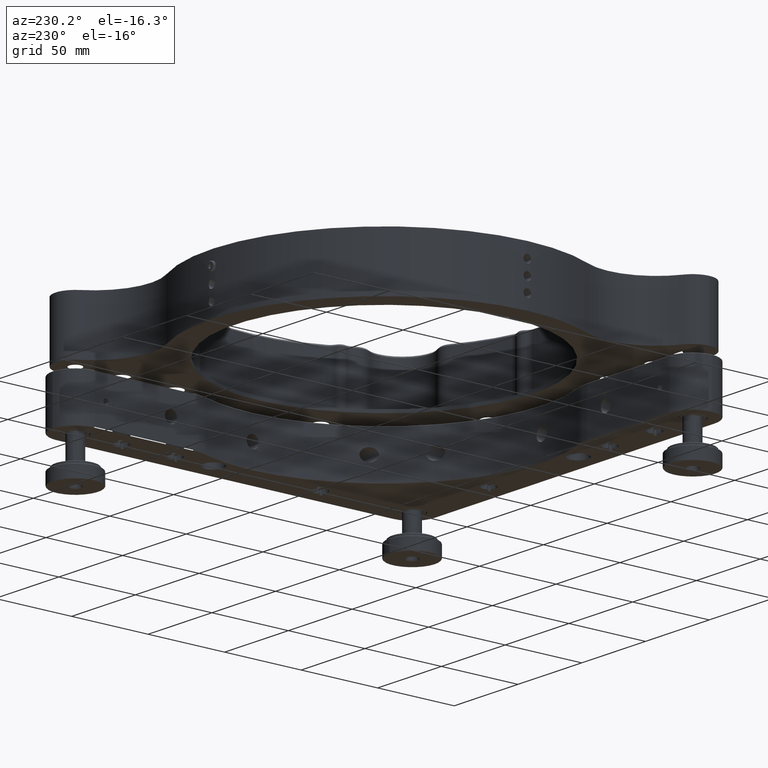
[diagram: clean part render]
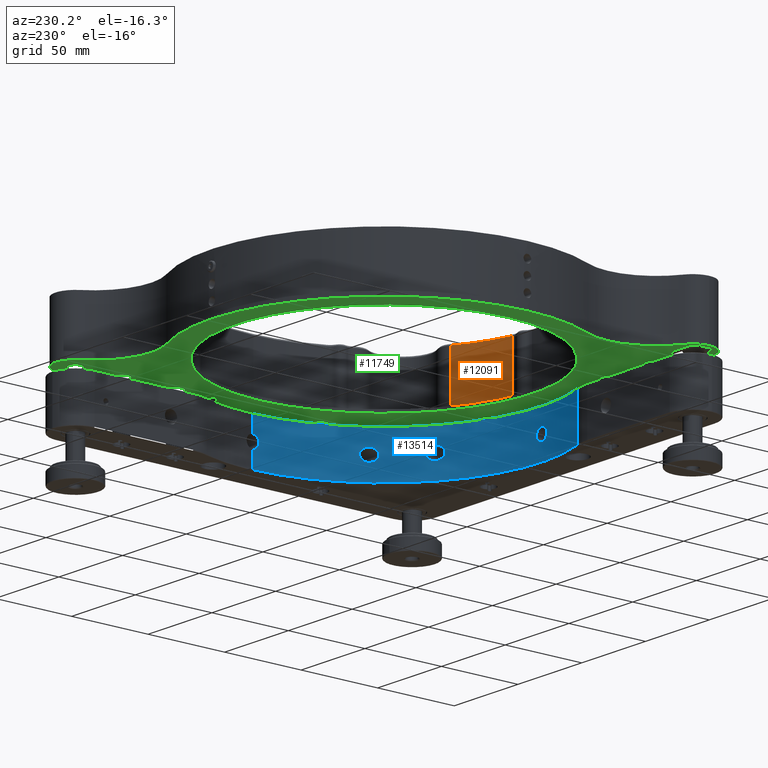
[diagram: same view with three faces highlighted in distinct colors, each labeled with its STEP entity id]
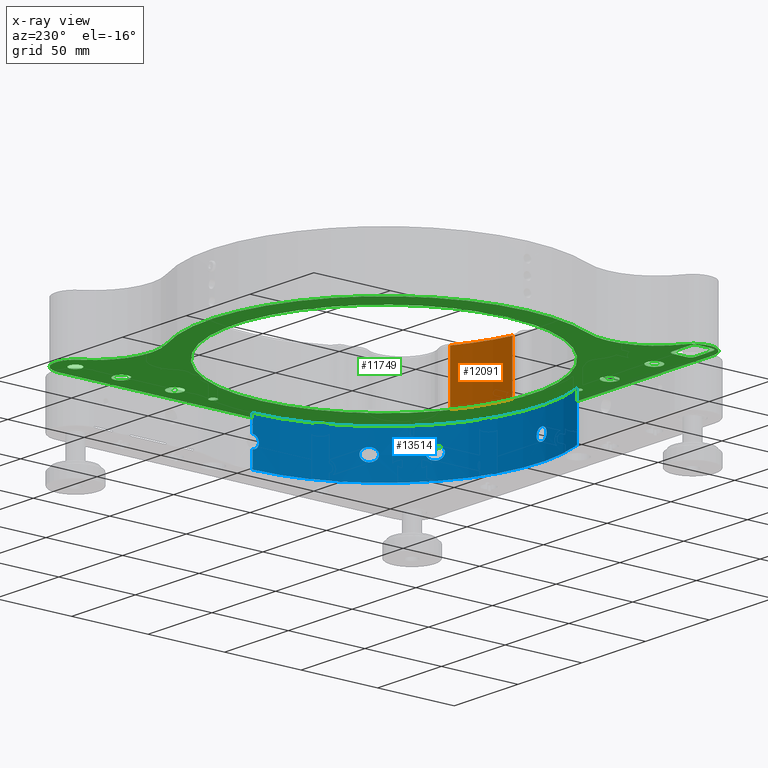
[diagram: x-ray of the same camera — body ghosted, the three highlighted faces saturated]
A machine part, auxiliary view with three faces highlighted in distinct colors.
The next image is the same camera in x-ray (body ghosted, the three faces saturated) — at least one of them is partly hidden behind the body in this view.
Their STEP definitions:

[orange] entity #12091 — the highlighted cylindrical surface (partial cylindrical patch) has radius 102.5 mm, axis along (0, 0, 1).
#482 = CARTESIAN_POINT ( 'NONE',  ( -105.0098927305134424, 24.46818607349054986, 22.00000000000001421 ) ) ;
#547 = EDGE_CURVE ( 'NONE', #8435, #2328, #2364, .T. ) ;
#1322 = DIRECTION ( 'NONE',  ( -4.973263948100216774E-30, -1.224646799147301438E-16, -1.000000000000000000 ) ) ;
#1334 = ORIENTED_EDGE ( 'NONE', *, *, #8919, .T. ) ;
#1561 = CARTESIAN_POINT ( 'NONE',  ( -71.75091976888319323, 37.41697964479610761, 22.00000000000001421 ) ) ;
#1810 = FACE_OUTER_BOUND ( 'NONE', #3028, .T. ) ;
#2328 = VERTEX_POINT ( 'NONE', #482 ) ;
#2364 = CIRCLE ( 'NONE', #10391, 102.4999999999995310 ) ;
#2479 = VERTEX_POINT ( 'NONE', #8852 ) ;
#2901 = CARTESIAN_POINT ( 'NONE',  ( -71.75091976888319323, 37.41697964479598681, -269.9137802864844957 ) ) ;
#2951 = CYLINDRICAL_SURFACE ( 'NONE', #9429, 102.4999999999995310 ) ;
#3028 = EDGE_LOOP ( 'NONE', ( #9614, #1334, #5957, #7635 ) ) ;
#3635 = CARTESIAN_POINT ( 'NONE',  ( -124.9999999999988347, 125.0000000000000568, 55.49999999999997868 ) ) ;
#4019 = DIRECTION ( 'NONE',  ( 1.000000000000000000, 0.000000000000000000, 0.000000000000000000 ) ) ;
#4101 = VERTEX_POINT ( 'NONE', #10274 ) ;
#4283 = AXIS2_PLACEMENT_3D ( 'NONE', #3635, #8015, #13874 ) ;
#4804 = DIRECTION ( 'NONE',  ( 4.973263948100216774E-30, 1.224646799147301438E-16, 1.000000000000000000 ) ) ;
#5041 = LINE ( 'NONE', #2901, #10294 ) ;
#5689 = DIRECTION ( 'NONE',  ( 1.000000000000000000, 8.123583107013377337E-16, 0.000000000000000000 ) ) ;
#5741 = LINE ( 'NONE', #10131, #10601 ) ;
#5957 = ORIENTED_EDGE ( 'NONE', *, *, #7093, .T. ) ;
#7093 = EDGE_CURVE ( 'NONE', #2479, #8435, #5041, .T. ) ;
#7486 = DIRECTION ( 'NONE',  ( -4.973263948100216774E-30, -1.224646799147301438E-16, -1.000000000000000000 ) ) ;
#7635 = ORIENTED_EDGE ( 'NONE', *, *, #547, .T. ) ;
#8015 = DIRECTION ( 'NONE',  ( 4.973263948100216774E-30, 1.224646799147301438E-16, 1.000000000000000000 ) ) ;
#8435 = VERTEX_POINT ( 'NONE', #1561 ) ;
#8852 = CARTESIAN_POINT ( 'NONE',  ( -71.75091976888319323, 37.41697964479602234, 55.50000000000025580 ) ) ;
#8919 = EDGE_CURVE ( 'NONE', #4101, #2479, #11387, .T. ) ;
#9429 = AXIS2_PLACEMENT_3D ( 'NONE', #10494, #10433, #4019 ) ;
#9614 = ORIENTED_EDGE ( 'NONE', *, *, #13436, .T. ) ;
#10131 = CARTESIAN_POINT ( 'NONE',  ( -105.0098927305134424, 24.46818607349050723, -269.9137802864844957 ) ) ;
#10274 = CARTESIAN_POINT ( 'NONE',  ( -105.0098927305134424, 24.46818607349054986, 55.49999999999999289 ) ) ;
#10294 = VECTOR ( 'NONE', #7486, 1000.000000000000000 ) ;
#10391 = AXIS2_PLACEMENT_3D ( 'NONE', #11142, #1322, #5689 ) ;
#10433 = DIRECTION ( 'NONE',  ( 4.973263948100216774E-30, 1.224646799147301438E-16, 1.000000000000000000 ) ) ;
#10494 = CARTESIAN_POINT ( 'NONE',  ( -124.9999999999989626, 124.9999999999999716, -269.9137802864844957 ) ) ;
#10601 = VECTOR ( 'NONE', #4804, 1000.000000000000000 ) ;
#11142 = CARTESIAN_POINT ( 'NONE',  ( -124.9999999999988347, 125.0000000000000568, 22.00000000000000355 ) ) ;
#11387 = CIRCLE ( 'NONE', #4283, 102.4999999999995310 ) ;
#12091 = ADVANCED_FACE ( 'NONE', ( #1810 ), #2951, .F. ) ;
#13436 = EDGE_CURVE ( 'NONE', #2328, #4101, #5741, .T. ) ;
#13874 = DIRECTION ( 'NONE',  ( 1.000000000000000000, 0.000000000000000000, 0.000000000000000000 ) ) ;

[blue] entity #13514 — the highlighted cylindrical surface (partial cylindrical patch) has radius 103 mm, axis along (-0, -0, 1).
#60 = CARTESIAN_POINT ( 'NONE',  ( -125.0000000000000000, 21.99999999999998934, -3.999999999999991562 ) ) ;
#107 = CARTESIAN_POINT ( 'NONE',  ( -41.28022933619558188, 65.00000000000005684, -3.999999999999982681 ) ) ;
#117 = CARTESIAN_POINT ( 'NONE',  ( -68.93883816278764698, 38.59312830195584354, -0.7115863366359383990 ) ) ;
#149 = CARTESIAN_POINT ( 'NONE',  ( -61.17111721882822195, 44.16141229707791638, -1.166297676206430989 ) ) ;
#174 = VERTEX_POINT ( 'NONE', #1364 ) ;
#257 = CARTESIAN_POINT ( 'NONE',  ( -43.80252325105319500, 61.62799568216430401, -2.168366062949599993 ) ) ;
#265 = CARTESIAN_POINT ( 'NONE',  ( -65.94064590148148852, 40.61220507294631688, 3.918137845215940107 ) ) ;
#299 = CARTESIAN_POINT ( 'NONE',  ( -125.0000000000000000, 125.0000000000000000, -14.69999999999997620 ) ) ;
#333 = CARTESIAN_POINT ( 'NONE',  ( -66.85413902802335429, 39.98160650666350335, -3.553311989139409821 ) ) ;
#350 = CARTESIAN_POINT ( 'NONE',  ( -122.9915096807459207, 22.01935336215000660, 3.469139571996211924 ) ) ;
#361 = CARTESIAN_POINT ( 'NONE',  ( -64.76124813806224267, 41.45133720716425074, -3.999999999999989786 ) ) ;
#393 = CARTESIAN_POINT ( 'NONE',  ( -42.64041822007882843, 63.14558274067272237, 3.552690851903685054 ) ) ;
#444 = CARTESIAN_POINT ( 'NONE',  ( -22.07278565191940700, 121.1281546417741026, 1.038324163537993172 ) ) ;
#460 = CARTESIAN_POINT ( 'NONE',  ( -41.62371808315816679, 64.52288203461299076, -3.978749659138374195 ) ) ;
#526 = CARTESIAN_POINT ( 'NONE',  ( -44.17287164291830948, 61.15658374898735872, -1.146472999303985052 ) ) ;
#556 = CARTESIAN_POINT ( 'NONE',  ( -125.0000000000000000, 125.0000000000000000, -15.00000000000000000 ) ) ;
#596 = CARTESIAN_POINT ( 'NONE',  ( -21.99999999999999289, 125.0000000000000000, -15.00000000000000000 ) ) ;
#597 = CARTESIAN_POINT ( 'NONE',  ( -44.16582617829069335, 61.16550223465562652, 1.174753806984875748 ) ) ;
#606 = B_SPLINE_CURVE_WITH_KNOTS ( 'NONE', 3,
 ( #3964, #12461, #6053, #8359, #393, #4776, #13544, #9366, #3702, #8225, #1681, #10377, #597, #13611, #2623, #5919, #10444, #2695, #1616, #526, #4977, #4634, #257, #12322, #9233, #6991, #4913, #3572, #11237, #11518, #2624, #460, #1619, #13474 ),
 .UNSPECIFIED., .F., .F.,
 ( 4, 2, 2, 2, 2, 2, 2, 2, 2, 2, 2, 2, 2, 2, 2, 2, 4 ),
 ( 0.000000000000000000, 0.001756958632610836849, 0.002635437948916255057, 0.003513917265221673698, 0.004392396581527118794, 0.005270875897832563890, 0.006149355214138008986, 0.006588594872290733269, 0.007027834530443456684, 0.007906313846748905250, 0.008784793163054353815, 0.009663272479359800646, 0.01054175179566524921, 0.01142023111197067176, 0.01229871042827609257, 0.01317718974458151511, 0.01405566906088693592 ),
 .UNSPECIFIED. ) ;
#633 = CARTESIAN_POINT ( 'NONE',  ( -61.94807274295471444, 43.55372695416223650, 2.599525624412872382 ) ) ;
#678 = ORIENTED_EDGE ( 'NONE', *, *, #6011, .T. ) ;
#713 = CARTESIAN_POINT ( 'NONE',  ( -126.0388064805453894, 22.00491967464315834, -3.871586407765338134 ) ) ;
#725 = CARTESIAN_POINT ( 'NONE',  ( -40.13193859641553729, 66.63485249437435698, 3.658915070314289864 ) ) ;
#727 = VERTEX_POINT ( 'NONE', #2194 ) ;
#768 = CARTESIAN_POINT ( 'NONE',  ( -65.00000000000001421, 41.28022933619560320, 4.000000000000003553 ) ) ;
#796 = CARTESIAN_POINT ( 'NONE',  ( -39.17828708682308303, 68.04676054387198292, -2.606004855302394230 ) ) ;
#871 = CARTESIAN_POINT ( 'NONE',  ( -39.29700495802642735, 67.86813216813412453, -2.800156439132278408 ) ) ;
#924 = CARTESIAN_POINT ( 'NONE',  ( -128.5960056512155631, 22.06274341591573318, -1.771277519159070390 ) ) ;
#928 = CARTESIAN_POINT ( 'NONE',  ( -22.00491967464315834, 123.9611935194546390, -3.871586407765331472 ) ) ;
#935 = CARTESIAN_POINT ( 'NONE',  ( -38.63689849236261153, 68.87143228884906421, -1.016261019280385813 ) ) ;
#1001 = CARTESIAN_POINT ( 'NONE',  ( -22.06274341591572963, 121.4039943487844084, -1.771277519159064173 ) ) ;
#1040 = FACE_OUTER_BOUND ( 'NONE', #10248, .T. ) ;
#1055 = CARTESIAN_POINT ( 'NONE',  ( -21.99999999999999289, 125.0000000000000000, 14.70000000000003304 ) ) ;
#1067 = CARTESIAN_POINT ( 'NONE',  ( -121.0002208100432597, 22.07769062793135006, -0.2671286957939328355 ) ) ;
#1198 = CARTESIAN_POINT ( 'NONE',  ( -65.00000000000000000, 41.28022933619561030, -3.999999999999989786 ) ) ;
#1210 = CARTESIAN_POINT ( 'NONE',  ( -21.99999999999999289, 125.0000000000000000, -14.69999999999997620 ) ) ;
#1364 = CARTESIAN_POINT ( 'NONE',  ( -125.0000000000000000, 21.99999999999999289, 3.999999999999991562 ) ) ;
#1366 = CARTESIAN_POINT ( 'NONE',  ( -123.7111343573121474, 22.00778295671296547, -3.795613342486275688 ) ) ;
#1478 = CARTESIAN_POINT ( 'NONE',  ( -126.2895779856113592, 22.00778829248121937, 3.795489713322955705 ) ) ;
#1530 = CARTESIAN_POINT ( 'NONE',  ( -22.01926314204938251, 122.9962219805784258, 3.471774092497244446 ) ) ;
#1549 = CARTESIAN_POINT ( 'NONE',  ( -127.6444542011150816, 22.03378747510321745, 3.012466539525247899 ) ) ;
#1616 = CARTESIAN_POINT ( 'NONE',  ( -44.27273972813635083, 61.03035152471910152, -0.5728348796827428258 ) ) ;
#1619 = CARTESIAN_POINT ( 'NONE',  ( -41.45153622701129592, 64.76097043979636680, -3.999999999999983569 ) ) ;
#1648 = LINE ( 'NONE', #13577, #12232 ) ;
#1681 = CARTESIAN_POINT ( 'NONE',  ( -43.90272869753806617, 61.49995367740439178, 1.956860922257351643 ) ) ;
#1721 = CARTESIAN_POINT ( 'NONE',  ( -61.00948016975387134, 44.28932021475786485, -0.3119340096192130818 ) ) ;
#1737 = CARTESIAN_POINT ( 'NONE',  ( -126.7729709524369213, 22.01497516389456521, -3.595192018444527626 ) ) ;
#1790 = CARTESIAN_POINT ( 'NONE',  ( -64.75903303480882300, 41.45292471981688465, 4.000000000000003553 ) ) ;
#1805 = CARTESIAN_POINT ( 'NONE',  ( -128.1810854625921081, 22.04903260206006976, -2.438983320003829558 ) ) ;
#1815 = CARTESIAN_POINT ( 'NONE',  ( -38.71182872081327275, 68.75614882447801790, 1.403555811298560441 ) ) ;
#1861 = CARTESIAN_POINT ( 'NONE',  ( -21.99999999999998934, 125.0000000000000284, -3.999999999999991562 ) ) ;
#1872 = CARTESIAN_POINT ( 'NONE',  ( -127.6424137529740506, 22.03373114889599194, -3.014526891617801851 ) ) ;
#1873 = B_SPLINE_CURVE_WITH_KNOTS ( 'NONE', 3,
 ( #60, #11042, #8835, #13140, #1366, #7750, #13214, #2370, #5666, #4661, #13429, #7604, #3525, #13355, #10892, #4442, #1067, #9839, #12129, #14215, #4370, #3302, #3381, #7090, #10337, #5006, #4870, #350, #10469, #5949, #13502, #9131, #8256, #9326 ),
 .UNSPECIFIED., .F., .F.,
 ( 4, 2, 2, 2, 2, 2, 2, 2, 2, 2, 2, 2, 2, 2, 2, 2, 4 ),
 ( 0.01250700266066831663, 0.01328851287849805614, 0.01407002309632779564, 0.01485153331415753689, 0.01563304353198727639, 0.01641455374981701590, 0.01719606396764675540, 0.01797757418547649491, 0.01875908440330623442, 0.01954059462113597392, 0.02032210483896571343, 0.02110361505679545294, 0.02188512527462519244, 0.02266663549245493542, 0.02344814571028467493, 0.02422965592811441443, 0.02501116614594415047 ),
 .UNSPECIFIED. ) ;
#1883 = CARTESIAN_POINT ( 'NONE',  ( -39.98740451011896369, 66.84567222578350254, -3.557532911336828807 ) ) ;
#1900 = AXIS2_PLACEMENT_3D ( 'NONE', #556, #3865, #12973 ) ;
#1942 = CARTESIAN_POINT ( 'NONE',  ( -128.9740779921098977, 22.07668234827932707, -0.5245192161954786991 ) ) ;
#1954 = CARTESIAN_POINT ( 'NONE',  ( -41.11063446138425093, 65.23664073374939676, 3.999999999999997335 ) ) ;
#2194 = CARTESIAN_POINT ( 'NONE',  ( -125.0000000000000000, 21.99999999999998934, -3.999999999999991562 ) ) ;
#2245 = LINE ( 'NONE', #6614, #7023 ) ;
#2279 = CARTESIAN_POINT ( 'NONE',  ( -67.48227887139999837, 39.55547950477119201, 3.147406570873739096 ) ) ;
#2283 = VERTEX_POINT ( 'NONE', #11407 ) ;
#2304 = CARTESIAN_POINT ( 'NONE',  ( -63.36821617428016395, 42.47363011253292342, -3.659921541016514901 ) ) ;
#2351 = CARTESIAN_POINT ( 'NONE',  ( -66.17616510378732642, 40.44922732015945854, -3.830902105085239651 ) ) ;
#2370 = CARTESIAN_POINT ( 'NONE',  ( -122.5595729675169991, 22.02868214386866086, -3.180199428950257090 ) ) ;
#2373 = EDGE_CURVE ( 'NONE', #14153, #8863, #9810, .T. ) ;
#2415 = EDGE_CURVE ( 'NONE', #9788, #8004, #2785, .T. ) ;
#2467 = DIRECTION ( 'NONE',  ( 0.000000000000000000, 0.000000000000000000, 1.000000000000000000 ) ) ;
#2501 = CARTESIAN_POINT ( 'NONE',  ( -67.28657517239524566, 39.68746296687305630, -3.291721678451390520 ) ) ;
#2554 = CARTESIAN_POINT ( 'NONE',  ( -125.0000000000000000, 21.99999999999999289, 3.999999999999991562 ) ) ;
#2565 = CARTESIAN_POINT ( 'NONE',  ( -67.49256592261831145, 39.54855899225489679, -3.139212246853167798 ) ) ;
#2602 = CARTESIAN_POINT ( 'NONE',  ( -125.0000000000000000, 125.0000000000000000, 14.70000000000003304 ) ) ;
#2623 = CARTESIAN_POINT ( 'NONE',  ( -44.26212283912343537, 61.04379883769555448, 0.6086211720364743671 ) ) ;
#2624 = CARTESIAN_POINT ( 'NONE',  ( -41.96981362999324006, 64.04859037694069457, -3.892673905188933414 ) ) ;
#2681 = CARTESIAN_POINT ( 'NONE',  ( -22.07668234827932707, 121.0259220078901734, -0.5245192161954652654 ) ) ;
#2695 = CARTESIAN_POINT ( 'NONE',  ( -44.29782238567155872, 60.99876148888186123, -0.2778573267655750634 ) ) ;
#2696 = CARTESIAN_POINT ( 'NONE',  ( -128.7950833212074713, 22.06989118290547580, 1.290434485106980000 ) ) ;
#2785 = B_SPLINE_CURVE_WITH_KNOTS ( 'NONE', 3,
 ( #12799, #9492, #10701, #12865, #3027, #13941, #1883, #5248, #11715, #871, #796, #5101, #4239, #4098, #10562, #13868, #935, #11928, #4028, #7401, #6459, #8566, #13018, #5320, #1815, #11645, #5179, #6252, #7476, #11854, #9708, #6182, #725, #9571, #11786, #7547, #1954, #10836 ),
 .UNSPECIFIED., .F., .F.,
 ( 4, 2, 2, 2, 2, 2, 2, 2, 2, 2, 2, 2, 2, 2, 2, 2, 2, 2, 4 ),
 ( 0.01405566906088693592, 0.01491667386568751134, 0.01577767867048808503, 0.01663868347528866046, 0.01749968828008923588, 0.01836069308488980784, 0.01922169788969038326, 0.01965220029209067965, 0.02008270269449097603, 0.02094370749929156880, 0.02137420990169186519, 0.02180471230409216504, 0.02266571710889274741, 0.02352672191369333324, 0.02438772671849391907, 0.02524873152329450490, 0.02610973632809508727, 0.02697074113289567310, 0.02783174593769625893 ),
 .UNSPECIFIED. ) ;
#2950 = CARTESIAN_POINT ( 'NONE',  ( -22.00778829248121227, 123.7104220143887119, 3.795489713322959258 ) ) ;
#3019 = B_SPLINE_CURVE_WITH_KNOTS ( 'NONE', 3,
 ( #5094, #9414, #3825, #12791, #2950, #10361, #1530, #9281, #9216, #13669, #5907, #10296, #8209, #7116, #444, #4825, #8142, #12519, #2681, #7044, #6244, #1001, #5172, #8489, #3090, #10759, #10904, #5313, #5383, #3163, #928, #11921, #7392, #8700 ),
 .UNSPECIFIED., .F., .F.,
 ( 4, 2, 2, 2, 2, 2, 2, 2, 2, 2, 2, 2, 2, 2, 2, 2, 4 ),
 ( 0.000000000000000000, 0.0007816876662917685969, 0.001563375332583537194, 0.002345062998875306007, 0.003126750665167074388, 0.003908438331458843201, 0.004690125997750612015, 0.005471813664042380829, 0.006253501330334150510, 0.007035188996625919323, 0.007816876662917686402, 0.008598564329209457818, 0.009380251995501227499, 0.01016193966179299718, 0.01094362732808476860, 0.01172531499437653654, 0.01250700266066830622 ),
 .UNSPECIFIED. ) ;
#3027 = CARTESIAN_POINT ( 'NONE',  ( -40.45119942815157543, 66.17334126300075070, -3.831633761962883078 ) ) ;
#3090 = CARTESIAN_POINT ( 'NONE',  ( -22.04398941787326294, 121.9842485890336121, -2.641016139565854903 ) ) ;
#3163 = CARTESIAN_POINT ( 'NONE',  ( -22.00777050201310558, 123.7118115334174888, -3.795971828430236616 ) ) ;
#3259 = ORIENTED_EDGE ( 'NONE', *, *, #13742, .T. ) ;
#3302 = CARTESIAN_POINT ( 'NONE',  ( -121.4039251322252113, 22.06274571363830717, 1.771196615060930846 ) ) ;
#3313 = CARTESIAN_POINT ( 'NONE',  ( -61.63827072170154509, 43.79450113609151884, -2.184300350606785734 ) ) ;
#3362 = CARTESIAN_POINT ( 'NONE',  ( -65.47472181925596146, 40.94000732018292155, 4.000000000000002665 ) ) ;
#3381 = CARTESIAN_POINT ( 'NONE',  ( -121.5266620462943621, 22.05847814523737327, 2.001030933573152648 ) ) ;
#3525 = CARTESIAN_POINT ( 'NONE',  ( -121.4063742281624911, 22.06266005554141785, -1.776070096192598813 ) ) ;
#3572 = CARTESIAN_POINT ( 'NONE',  ( -42.64414643342411182, 63.14060137564946018, -3.550375757098666707 ) ) ;
#3583 = CARTESIAN_POINT ( 'NONE',  ( -65.94125842589578212, 40.61310579133392906, -3.895025148848205720 ) ) ;
#3611 = ORIENTED_EDGE ( 'NONE', *, *, #8940, .F. ) ;
#3612 = CARTESIAN_POINT ( 'NONE',  ( -63.14884557483912886, 42.63795692164827500, -3.554610092558739165 ) ) ;
#3633 = VERTEX_POINT ( 'NONE', #10145 ) ;
#3672 = CARTESIAN_POINT ( 'NONE',  ( -61.00053869252432293, 44.29641301166190459, -0.1621031785143442761 ) ) ;
#3702 = CARTESIAN_POINT ( 'NONE',  ( -43.54167550032213541, 61.96363859438000077, 2.617660962389642076 ) ) ;
#3738 = CARTESIAN_POINT ( 'NONE',  ( -61.24991150150777486, 44.09914288826824702, 1.419865299369670764 ) ) ;
#3768 = CARTESIAN_POINT ( 'NONE',  ( -65.00000000000000000, 41.28022933619561030, -3.999999999999989786 ) ) ;
#3770 = CARTESIAN_POINT ( 'NONE',  ( -128.5956271057982860, 22.06273063545023305, 1.771819486095906893 ) ) ;
#3805 = CARTESIAN_POINT ( 'NONE',  ( -61.15696358851863579, 44.17257149189664034, 1.147752900553293598 ) ) ;
#3825 = CARTESIAN_POINT ( 'NONE',  ( -22.00101667326724808, 124.4757902804408047, 3.974059025626016428 ) ) ;
#3865 = DIRECTION ( 'NONE',  ( -0.000000000000000000, -0.000000000000000000, 1.000000000000000000 ) ) ;
#3934 = CARTESIAN_POINT ( 'NONE',  ( -63.13710936381637850, 42.64677298323513099, 3.548481679139986689 ) ) ;
#3964 = CARTESIAN_POINT ( 'NONE',  ( -41.28022933619557477, 65.00000000000004263, 3.999999999999996447 ) ) ;
#4028 = CARTESIAN_POINT ( 'NONE',  ( -38.55431853821138333, 68.99871288241718048, -0.3082447331607539587 ) ) ;
#4098 = CARTESIAN_POINT ( 'NONE',  ( -38.75646184900392655, 68.68786114010534050, -1.555292503025336170 ) ) ;
#4104 = LINE ( 'NONE', #596, #6338 ) ;
#4239 = CARTESIAN_POINT ( 'NONE',  ( -38.87087212620439658, 68.51289744717945496, -1.933020889763599426 ) ) ;
#4252 = EDGE_LOOP ( 'NONE', ( #12745, #4558 ) ) ;
#4370 = CARTESIAN_POINT ( 'NONE',  ( -121.2033111256808695, 22.06994982969574082, 1.286097000799628853 ) ) ;
#4423 = CARTESIAN_POINT ( 'NONE',  ( -68.84063662060290767, 38.65689668280101898, 1.154026275206645469 ) ) ;
#4442 = CARTESIAN_POINT ( 'NONE',  ( -121.0262790305695972, 22.07666860508140516, -0.5267780051252275442 ) ) ;
#4501 = CARTESIAN_POINT ( 'NONE',  ( -68.52144044930234656, 38.86526833323992491, -1.918191918143069552 ) ) ;
#4558 = ORIENTED_EDGE ( 'NONE', *, *, #2415, .T. ) ;
#4577 = CARTESIAN_POINT ( 'NONE',  ( -68.50753130722675621, 38.87446317076889102, 1.927747386646865735 ) ) ;
#4634 = CARTESIAN_POINT ( 'NONE',  ( -43.91370237645180907, 61.48594600701805746, -1.931725785899621517 ) ) ;
#4644 = CARTESIAN_POINT ( 'NONE',  ( -68.75632871812588576, 38.71170920128879089, -1.403566041978411283 ) ) ;
#4661 = CARTESIAN_POINT ( 'NONE',  ( -121.9890514591352257, 22.04385273881257845, -2.646163622149533268 ) ) ;
#4720 = CARTESIAN_POINT ( 'NONE',  ( -67.86957364232873147, 39.29604028589069742, 2.798825401669488677 ) ) ;
#4750 = CARTESIAN_POINT ( 'NONE',  ( -62.13945636806429462, 43.40582582529088995, -2.807542906316442988 ) ) ;
#4759 = DIRECTION ( 'NONE',  ( 1.000000000000000000, 0.000000000000000000, 0.000000000000000000 ) ) ;
#4776 = CARTESIAN_POINT ( 'NONE',  ( -42.95846142899082309, 62.72435793702242535, 3.298776873645471230 ) ) ;
#4825 = CARTESIAN_POINT ( 'NONE',  ( -22.07669972061933095, 121.0254686396784081, 0.5219233779227939740 ) ) ;
#4841 = CARTESIAN_POINT ( 'NONE',  ( -128.0134206010724824, 22.04392511354641471, 2.643366973120821140 ) ) ;
#4870 = CARTESIAN_POINT ( 'NONE',  ( -122.5551930070906650, 22.02878783815505059, 3.176772182569754577 ) ) ;
#4913 = CARTESIAN_POINT ( 'NONE',  ( -42.96714780791181454, 62.71289879857464200, -3.291154714575000195 ) ) ;
#4977 = CARTESIAN_POINT ( 'NONE',  ( -44.09993122468434734, 61.24890911468842347, -1.417553225679424989 ) ) ;
#5006 = CARTESIAN_POINT ( 'NONE',  ( -122.3540339092617870, 22.03382635072264861, 3.011148220544599408 ) ) ;
#5054 = B_SPLINE_CURVE_WITH_KNOTS ( 'NONE', 3,
 ( #2554, #12534, #5986, #5852, #1478, #10311, #5920, #6990, #1549, #4841, #9232, #13612, #3770, #2696, #7059, #11451, #10378, #9296, #1942, #12716, #7255, #924, #11635, #1805, #5309, #1872, #5090, #6174, #1737, #7320, #713, #13927, #9482, #6317 ),
 .UNSPECIFIED., .F., .F.,
 ( 4, 2, 2, 2, 2, 2, 2, 2, 2, 2, 2, 2, 2, 2, 2, 2, 4 ),
 ( 0.000000000000000000, 0.0007816876662917697895, 0.001563375332583539579, 0.002345062998875309477, 0.003126750665167079158, 0.003908438331458849273, 0.004690125997750618954, 0.005471813664042388635, 0.006253501330334158316, 0.007035188996625927997, 0.007816876662917698546, 0.008598564329209468227, 0.009380251995501237908, 0.01016193966179300759, 0.01094362732808477727, 0.01172531499437654695, 0.01250700266066831663 ),
 .UNSPECIFIED. ) ;
#5090 = CARTESIAN_POINT ( 'NONE',  ( -127.4399943592978133, 22.02867692895729590, -3.180303980659060947 ) ) ;
#5094 = CARTESIAN_POINT ( 'NONE',  ( -21.99999999999999289, 125.0000000000000284, 3.999999999999991562 ) ) ;
#5101 = CARTESIAN_POINT ( 'NONE',  ( -38.96363047377909083, 68.37155299104180983, -2.169479556518481456 ) ) ;
#5172 = CARTESIAN_POINT ( 'NONE',  ( -22.05838963121459173, 121.5292871664202181, -2.005516587414782670 ) ) ;
#5179 = CARTESIAN_POINT ( 'NONE',  ( -38.95665216101079409, 68.38216067439532253, 2.152926436255873544 ) ) ;
#5248 = CARTESIAN_POINT ( 'NONE',  ( -39.69569201212215148, 67.27442274427713187, -3.299931447861931488 ) ) ;
#5309 = CARTESIAN_POINT ( 'NONE',  ( -128.0157514109664305, 22.04398941787326294, -2.641016139565865117 ) ) ;
#5313 = CARTESIAN_POINT ( 'NONE',  ( -22.01932263827481506, 122.9932519852462889, -3.469995430556492177 ) ) ;
#5320 = CARTESIAN_POINT ( 'NONE',  ( -38.65189369429799626, 68.84833216113393917, 1.128191723391658075 ) ) ;
#5383 = CARTESIAN_POINT ( 'NONE',  ( -22.01497516389456521, 123.2270290475631498, -3.595192018444526738 ) ) ;
#5503 = CARTESIAN_POINT ( 'NONE',  ( -65.00000000000001421, 41.28022933619560320, 4.000000000000003553 ) ) ;
#5518 = CARTESIAN_POINT ( 'NONE',  ( -41.28022933619557477, 65.00000000000004263, 3.999999999999996447 ) ) ;
#5604 = CARTESIAN_POINT ( 'NONE',  ( -61.49691213167994874, 43.90511315433140993, -1.951105840455726881 ) ) ;
#5666 = CARTESIAN_POINT ( 'NONE',  ( -122.3580735603377008, 22.03372253659716407, -3.014667099090128310 ) ) ;
#5686 = DIRECTION ( 'NONE',  ( -0.000000000000000000, -0.000000000000000000, -1.000000000000000000 ) ) ;
#5724 = CARTESIAN_POINT ( 'NONE',  ( -66.62438748097206087, 40.13914522688049402, 3.663402794286072073 ) ) ;
#5790 = CARTESIAN_POINT ( 'NONE',  ( -68.36656303104531673, 38.96709391046562132, 2.164541340769149169 ) ) ;
#5852 = CARTESIAN_POINT ( 'NONE',  ( -126.0355155912592835, 22.00488812748970346, 3.872421520121330119 ) ) ;
#5907 = CARTESIAN_POINT ( 'NONE',  ( -22.04896593400010474, 121.8210092499703308, 2.441967602591540221 ) ) ;
#5919 = CARTESIAN_POINT ( 'NONE',  ( -44.28921185274753469, 61.00961672089097476, 0.3143066233429145373 ) ) ;
#5920 = CARTESIAN_POINT ( 'NONE',  ( -127.0037780194215884, 22.01926314204938606, 3.471774092497244446 ) ) ;
#5949 = CARTESIAN_POINT ( 'NONE',  ( -123.7058974628748018, 22.00784893362824590, 3.793831464431565603 ) ) ;
#5986 = CARTESIAN_POINT ( 'NONE',  ( -125.5242097195592663, 22.00101667326724808, 3.974059025626013764 ) ) ;
#6011 = EDGE_CURVE ( 'NONE', #3633, #10440, #3019, .T. ) ;
#6022 = CARTESIAN_POINT ( 'NONE',  ( -62.71113844990431829, 42.96848797728866032, 3.289862695321229769 ) ) ;
#6053 = CARTESIAN_POINT ( 'NONE',  ( -41.96814022527895105, 64.04895705858363897, 3.915398407542993731 ) ) ;
#6073 = ORIENTED_EDGE ( 'NONE', *, *, #12945, .T. ) ;
#6174 = CARTESIAN_POINT ( 'NONE',  ( -127.0067480147537253, 22.01932263827481151, -3.469995430556508609 ) ) ;
#6182 = CARTESIAN_POINT ( 'NONE',  ( -39.97934323921973032, 66.85745783922062913, 3.551439401609955304 ) ) ;
#6187 = EDGE_CURVE ( 'NONE', #8863, #14153, #12286, .T. ) ;
#6244 = CARTESIAN_POINT ( 'NONE',  ( -22.06993829580588695, 121.2036270899751997, -1.286947326615403897 ) ) ;
#6252 = CARTESIAN_POINT ( 'NONE',  ( -39.16997360524161564, 68.05929394259013065, 2.591297674947251828 ) ) ;
#6317 = CARTESIAN_POINT ( 'NONE',  ( -125.0000000000000000, 21.99999999999998934, -3.999999999999991562 ) ) ;
#6338 = VECTOR ( 'NONE', #12872, 1000.000000000000000 ) ;
#6459 = CARTESIAN_POINT ( 'NONE',  ( -38.55794150444634028, 68.99311779760553520, 0.2758881848605624909 ) ) ;
#6486 = FACE_BOUND ( 'NONE', #11936, .T. ) ;
#6597 = CARTESIAN_POINT ( 'NONE',  ( -61.31862996402445276, 44.04514331633959046, -1.570708219778295334 ) ) ;
#6614 = CARTESIAN_POINT ( 'NONE',  ( -21.99999999999999289, 125.0000000000000000, -15.00000000000000000 ) ) ;
#6646 = CARTESIAN_POINT ( 'NONE',  ( -65.47048271565019206, 40.94454543342397557, -3.979426384386848259 ) ) ;
#6671 = CARTESIAN_POINT ( 'NONE',  ( -62.72221502623549583, 42.96007714211998518, -3.297532597140729216 ) ) ;
#6871 = EDGE_CURVE ( 'NONE', #8004, #9788, #606, .T. ) ;
#6931 = CARTESIAN_POINT ( 'NONE',  ( -68.05044358683539940, 39.17584845844141483, 2.601370913322825995 ) ) ;
#6959 = CARTESIAN_POINT ( 'NONE',  ( -64.04330857220142548, 41.97369122913936224, 3.891381651667048747 ) ) ;
#6990 = CARTESIAN_POINT ( 'NONE',  ( -127.4386028826717592, 22.02864230215175212, 3.181439561122779924 ) ) ;
#6991 = CARTESIAN_POINT ( 'NONE',  ( -43.12213586493354711, 62.50941611510996410, -3.140537623949861246 ) ) ;
#7023 = VECTOR ( 'NONE', #11933, 1000.000000000000000 ) ;
#7044 = CARTESIAN_POINT ( 'NONE',  ( -22.07278898353405339, 121.1280696421217584, -1.037579683335755343 ) ) ;
#7059 = CARTESIAN_POINT ( 'NONE',  ( -128.8718453582259258, 22.07278565191940700, 1.038324163537985623 ) ) ;
#7090 = CARTESIAN_POINT ( 'NONE',  ( -121.8163265883977289, 22.04911257340478414, 2.435656984475753184 ) ) ;
#7116 = CARTESIAN_POINT ( 'NONE',  ( -22.06989118290547580, 121.2049166787925571, 1.290434485106987550 ) ) ;
#7169 = CARTESIAN_POINT ( 'NONE',  ( -61.06768434857806938, 44.24320040376392882, -0.7467975817423921914 ) ) ;
#7255 = CARTESIAN_POINT ( 'NONE',  ( -128.7963729100248429, 22.06993829580590116, -1.286947326615411447 ) ) ;
#7320 = CARTESIAN_POINT ( 'NONE',  ( -126.2881884665825396, 22.00777050201309848, -3.795971828430236172 ) ) ;
#7392 = CARTESIAN_POINT ( 'NONE',  ( -21.99999999999998934, 124.7389257919925711, -3.999999999999992450 ) ) ;
#7401 = CARTESIAN_POINT ( 'NONE',  ( -38.55310370126750996, 69.00058820959874595, 0.1283505360428752184 ) ) ;
#7476 = CARTESIAN_POINT ( 'NONE',  ( -39.28849086628875398, 67.88090288122661775, 2.787191014373837650 ) ) ;
#7547 = CARTESIAN_POINT ( 'NONE',  ( -40.94213296493862941, 65.47389641073752387, 3.978949156545456223 ) ) ;
#7604 = CARTESIAN_POINT ( 'NONE',  ( -121.5293215122914177, 22.05838766570597897, -2.005696239030940742 ) ) ;
#7735 = CARTESIAN_POINT ( 'NONE',  ( -68.99136511916724146, 38.55907686926655487, 0.3003542507969136910 ) ) ;
#7750 = CARTESIAN_POINT ( 'NONE',  ( -123.2297473701036665, 22.01493238453067391, -3.596395545112625491 ) ) ;
#7810 = CARTESIAN_POINT ( 'NONE',  ( -68.95895653015308824, 38.58008435714292972, 0.5898062248188860046 ) ) ;
#7835 = CARTESIAN_POINT ( 'NONE',  ( -64.52102381953332610, 41.62507012399605344, -3.978468257070857383 ) ) ;
#7884 = CARTESIAN_POINT ( 'NONE',  ( -68.96232830503660693, 38.57789817099734364, -0.5665982361936119371 ) ) ;
#7954 = ORIENTED_EDGE ( 'NONE', *, *, #9177, .F. ) ;
#8004 = VERTEX_POINT ( 'NONE', #5518 ) ;
#8005 = EDGE_CURVE ( 'NONE', #727, #174, #1873, .T. ) ;
#8056 = CARTESIAN_POINT ( 'NONE',  ( -61.04308158388266747, 44.26269111336983286, -0.6036124502827434624 ) ) ;
#8067 = ORIENTED_EDGE ( 'NONE', *, *, #14008, .T. ) ;
#8142 = CARTESIAN_POINT ( 'NONE',  ( -22.07769559347813271, 121.0000930435982411, 0.2623442111640456598 ) ) ;
#8209 = CARTESIAN_POINT ( 'NONE',  ( -22.06273063545023305, 121.4043728942017566, 1.771819486095914442 ) ) ;
#8225 = CARTESIAN_POINT ( 'NONE',  ( -43.79162946044869642, 61.64195359809702524, 2.189786259483714748 ) ) ;
#8256 = CARTESIAN_POINT ( 'NONE',  ( -124.7357439635875664, 21.99999999999998579, 3.999999999999991562 ) ) ;
#8258 = FACE_BOUND ( 'NONE', #12305, .T. ) ;
#8266 = CARTESIAN_POINT ( 'NONE',  ( -63.35922794838170802, 42.48033796083411318, 3.656002515647247098 ) ) ;
#8289 = VERTEX_POINT ( 'NONE', #1055 ) ;
#8359 = CARTESIAN_POINT ( 'NONE',  ( -42.47350552266750867, 63.36837214054261125, 3.660122589448944641 ) ) ;
#8489 = CARTESIAN_POINT ( 'NONE',  ( -22.04903260206007332, 121.8189145374079487, -2.438983320003817123 ) ) ;
#8517 = CARTESIAN_POINT ( 'NONE',  ( -160.1836126085671310, 28.19548872180450871, 14.70000000000003304 ) ) ;
#8534 = CIRCLE ( 'NONE', #14032, 103.0000000000000142 ) ;
#8566 = CARTESIAN_POINT ( 'NONE',  ( -38.57773189958842153, 68.96258475480691175, 0.5648239522819259451 ) ) ;
#8700 = CARTESIAN_POINT ( 'NONE',  ( -21.99999999999998934, 125.0000000000000284, -3.999999999999991562 ) ) ;
#8817 = CARTESIAN_POINT ( 'NONE',  ( -67.27776758540947810, 39.69343031972515234, 3.297596487795597664 ) ) ;
#8835 = CARTESIAN_POINT ( 'NONE',  ( -124.4795586991253771, 22.00099219966045183, -3.974697341155160490 ) ) ;
#8846 = CARTESIAN_POINT ( 'NONE',  ( -64.04864389539561387, 41.96977851001638982, -3.892627572245616729 ) ) ;
#8863 = VERTEX_POINT ( 'NONE', #3768 ) ;
#8940 = EDGE_CURVE ( 'NONE', #3633, #8289, #4104, .T. ) ;
#8992 = CARTESIAN_POINT ( 'NONE',  ( -62.51907073744801835, 43.11477127440365109, -3.148014776844108908 ) ) ;
#9075 = DIRECTION ( 'NONE',  ( 1.000000000000000000, 0.000000000000000000, 0.000000000000000000 ) ) ;
#9131 = CARTESIAN_POINT ( 'NONE',  ( -124.4742538693587335, 22.00101680093489875, 3.974067701997284541 ) ) ;
#9137 = CARTESIAN_POINT ( 'NONE',  ( -61.96108119725622743, 43.54365280069512067, -2.614835419784645509 ) ) ;
#9177 = EDGE_CURVE ( 'NONE', #10582, #10440, #2245, .T. ) ;
#9216 = CARTESIAN_POINT ( 'NONE',  ( -22.03378747510323521, 122.3555457988850037, 3.012466539525254561 ) ) ;
#9232 = CARTESIAN_POINT ( 'NONE',  ( -128.1789907500297545, 22.04896593400010119, 2.441967602591528230 ) ) ;
#9233 = CARTESIAN_POINT ( 'NONE',  ( -43.41452022587063908, 62.12816847251857411, -2.796170297546671346 ) ) ;
#9267 = CARTESIAN_POINT ( 'NONE',  ( -63.81165625983910417, 42.14430621548306988, 3.827051930012338232 ) ) ;
#9281 = CARTESIAN_POINT ( 'NONE',  ( -22.02864230215176278, 122.5613971173282977, 3.181439561122781257 ) ) ;
#9296 = CARTESIAN_POINT ( 'NONE',  ( -129.0000925377176202, 22.07770280595987344, -0.2594991998035967029 ) ) ;
#9326 = CARTESIAN_POINT ( 'NONE',  ( -125.0000000000000000, 21.99999999999999289, 3.999999999999991562 ) ) ;
#9366 = CARTESIAN_POINT ( 'NONE',  ( -43.40205987514941910, 62.14434549264824881, 2.812469666544551217 ) ) ;
#9401 = CARTESIAN_POINT ( 'NONE',  ( -62.50888477995851389, 43.12254125808563288, 3.140123676203605552 ) ) ;
#9413 = ORIENTED_EDGE ( 'NONE', *, *, #6187, .T. ) ;
#9414 = CARTESIAN_POINT ( 'NONE',  ( -21.99999999999999289, 124.7356839620339741, 3.999999999999991562 ) ) ;
#9482 = CARTESIAN_POINT ( 'NONE',  ( -125.2610742080074431, 21.99999999999998934, -3.999999999999994227 ) ) ;
#9492 = CARTESIAN_POINT ( 'NONE',  ( -41.11233004323539575, 65.23427483835405383, -3.999999999999980904 ) ) ;
#9571 = CARTESIAN_POINT ( 'NONE',  ( -40.45029071340169935, 66.17462325400936152, 3.831535251211383386 ) ) ;
#9708 = CARTESIAN_POINT ( 'NONE',  ( -39.68757317457517786, 67.28642175268495862, 3.291678449763729475 ) ) ;
#9788 = VERTEX_POINT ( 'NONE', #107 ) ;
#9810 = B_SPLINE_CURVE_WITH_KNOTS ( 'NONE', 3,
 ( #5503, #3362, #265, #5724, #10181, #8817, #2279, #4720, #6931, #10112, #5790, #4577, #13414, #13483, #4423, #13340, #7810, #7735, #11317, #9895, #7884, #117, #11247, #4644, #4501, #12183, #12111, #12400, #2565, #2501, #333, #12331, #2351, #3583, #6646, #11100, #1198 ),
 .UNSPECIFIED., .F., .F.,
 ( 4, 2, 2, 2, 2, 2, 2, 2, 2, 1, 2, 2, 2, 2, 2, 2, 2, 2, 4 ),
 ( 1.561251128379126385E-17, 0.001725794143922750132, 0.002588691215884133656, 0.003451588287845516745, 0.004314485359806900268, 0.004745933895787583789, 0.005177382431768268178, 0.006040279503729612670, 0.006471728039710284916, 0.006903176575690958029, 0.007334625111671630275, 0.007766073647652304256, 0.008628970719613642676, 0.009491867791574983698, 0.01035476486353632299, 0.01121766193549766227, 0.01208055900745900330, 0.01294345607942034085, 0.01380635315138168014 ),
 .UNSPECIFIED. ) ;
#9839 = CARTESIAN_POINT ( 'NONE',  ( -120.9997819574238491, 22.07770768361176295, 0.2604744140524102858 ) ) ;
#9895 = CARTESIAN_POINT ( 'NONE',  ( -68.99297885127523955, 38.55803151488682090, -0.2778471727779631695 ) ) ;
#10112 = CARTESIAN_POINT ( 'NONE',  ( -68.29103829789362123, 39.01684523384715675, 2.277531799576946625 ) ) ;
#10145 = CARTESIAN_POINT ( 'NONE',  ( -21.99999999999999289, 125.0000000000000284, 3.999999999999991562 ) ) ;
#10181 = CARTESIAN_POINT ( 'NONE',  ( -66.84991465237456509, 39.98450423832440492, 3.555303580342148440 ) ) ;
#10248 = EDGE_LOOP ( 'NONE', ( #7954, #6073, #8067, #12957, #3611, #678 ) ) ;
#10296 = CARTESIAN_POINT ( 'NONE',  ( -22.05841068764686597, 121.5286044169140354, 2.004644773173583694 ) ) ;
#10311 = CARTESIAN_POINT ( 'NONE',  ( -126.7740191406291359, 22.01499361617720396, 3.594664050171481051 ) ) ;
#10337 = CARTESIAN_POINT ( 'NONE',  ( -121.9851067518032437, 22.04396826203696946, 2.641698101866101211 ) ) ;
#10361 = CARTESIAN_POINT ( 'NONE',  ( -22.01499361617717909, 123.2259808593709067, 3.594664050171488157 ) ) ;
#10375 = CIRCLE ( 'NONE', #10799, 103.0000000000000142 ) ;
#10377 = CARTESIAN_POINT ( 'NONE',  ( -44.09127787663875608, 61.25988719776517399, 1.446093066137856153 ) ) ;
#10378 = CARTESIAN_POINT ( 'NONE',  ( -128.9999069564017873, 22.07769559347813271, 0.2623442111640372776 ) ) ;
#10409 = CYLINDRICAL_SURFACE ( 'NONE', #1900, 103.0000000000000142 ) ;
#10440 = VERTEX_POINT ( 'NONE', #1861 ) ;
#10444 = CARTESIAN_POINT ( 'NONE',  ( -44.29630466541736666, 61.00067531601776238, 0.1648655552660299173 ) ) ;
#10469 = CARTESIAN_POINT ( 'NONE',  ( -123.2247745887212602, 22.01501829201460581, 3.593943975113570666 ) ) ;
#10479 = CARTESIAN_POINT ( 'NONE',  ( -62.12756688639215241, 43.41498369275586100, 2.795560721791912950 ) ) ;
#10543 = CARTESIAN_POINT ( 'NONE',  ( -65.00000000000001421, 41.28022933619560320, 4.000000000000003553 ) ) ;
#10562 = CARTESIAN_POINT ( 'NONE',  ( -38.72233971685439968, 68.74017125742817313, -1.425239707955464841 ) ) ;
#10582 = VERTEX_POINT ( 'NONE', #1210 ) ;
#10701 = CARTESIAN_POINT ( 'NONE',  ( -40.94527123057770268, 65.46945367724522669, -3.979591319928409643 ) ) ;
#10759 = CARTESIAN_POINT ( 'NONE',  ( -22.03373114889599194, 122.3575862470259921, -3.014526891617794302 ) ) ;
#10799 = AXIS2_PLACEMENT_3D ( 'NONE', #2602, #2467, #9075 ) ;
#10836 = CARTESIAN_POINT ( 'NONE',  ( -41.28022933619557477, 65.00000000000004263, 3.999999999999996447 ) ) ;
#10892 = CARTESIAN_POINT ( 'NONE',  ( -121.1282593127811111, 22.07278189020135173, -1.038064285344995730 ) ) ;
#10904 = CARTESIAN_POINT ( 'NONE',  ( -22.02867692895729590, 122.5600056407022009, -3.180303980659042740 ) ) ;
#10979 = CARTESIAN_POINT ( 'NONE',  ( -61.26453794212154946, 44.08773631170409857, -1.437677584032207800 ) ) ;
#11042 = CARTESIAN_POINT ( 'NONE',  ( -124.7389850576285539, 21.99999999999998579, -3.999999999999992450 ) ) ;
#11100 = CARTESIAN_POINT ( 'NONE',  ( -65.23517895525627353, 41.11168208381433686, -3.999999999999989786 ) ) ;
#11154 = ORIENTED_EDGE ( 'NONE', *, *, #2373, .T. ) ;
#11237 = CARTESIAN_POINT ( 'NONE',  ( -42.47895537692539847, 63.36107650306672667, -3.656857759406137109 ) ) ;
#11247 = CARTESIAN_POINT ( 'NONE',  ( -68.84662367577237774, 38.65300410488398342, -1.134324047820689740 ) ) ;
#11317 = CARTESIAN_POINT ( 'NONE',  ( -69.00779705498354133, 38.54843534021885887, 0.01107991059981052774 ) ) ;
#11407 = CARTESIAN_POINT ( 'NONE',  ( -160.1836126085671310, 28.19548872180450871, -14.69999999999997620 ) ) ;
#11451 = CARTESIAN_POINT ( 'NONE',  ( -128.9745313603216630, 22.07669972061933095, 0.5219233779227859804 ) ) ;
#11489 = CARTESIAN_POINT ( 'NONE',  ( -61.13170067048049816, 44.19256218432250449, -1.028140704258537541 ) ) ;
#11518 = CARTESIAN_POINT ( 'NONE',  ( -42.14231588418615360, 63.81434907996584371, -3.827912067583465028 ) ) ;
#11552 = FACE_BOUND ( 'NONE', #4252, .T. ) ;
#11620 = CARTESIAN_POINT ( 'NONE',  ( -61.03053220832840964, 44.27259642524981587, 0.5741001929820649385 ) ) ;
#11635 = CARTESIAN_POINT ( 'NONE',  ( -128.4707128335798529, 22.05838963121458818, -2.005516587414798657 ) ) ;
#11645 = CARTESIAN_POINT ( 'NONE',  ( -38.86385483002487717, 68.52359968077367114, 1.913862115385824847 ) ) ;
#11715 = CARTESIAN_POINT ( 'NONE',  ( -39.55489987830627285, 67.48314554570920620, -3.146592826586279479 ) ) ;
#11786 = CARTESIAN_POINT ( 'NONE',  ( -40.61241276251956123, 65.94225589103237439, 3.894710263202958433 ) ) ;
#11854 = CARTESIAN_POINT ( 'NONE',  ( -39.54722450925438437, 67.49454621889886141, 3.137718012097861831 ) ) ;
#11921 = CARTESIAN_POINT ( 'NONE',  ( -22.00102532980512748, 124.4737804457389245, -3.973838597317417065 ) ) ;
#11928 = CARTESIAN_POINT ( 'NONE',  ( -38.57543012403155558, 68.96608720561474115, -0.5943483686074199079 ) ) ;
#11933 = DIRECTION ( 'NONE',  ( -0.000000000000000000, -0.000000000000000000, 1.000000000000000000 ) ) ;
#11936 = EDGE_LOOP ( 'NONE', ( #3259, #13971 ) ) ;
#12004 = VERTEX_POINT ( 'NONE', #8517 ) ;
#12064 = CARTESIAN_POINT ( 'NONE',  ( -65.00000000000000000, 41.28022933619561030, -3.999999999999989786 ) ) ;
#12111 = CARTESIAN_POINT ( 'NONE',  ( -68.05926790784988611, 39.16999323830133051, -2.591158789528187789 ) ) ;
#12129 = CARTESIAN_POINT ( 'NONE',  ( -121.0255774931749215, 22.07669588226363189, 0.5213877693530298840 ) ) ;
#12183 = CARTESIAN_POINT ( 'NONE',  ( -68.38037979163067348, 38.95782639098853650, -2.155517680021296290 ) ) ;
#12232 = VECTOR ( 'NONE', #12355, 1000.000000000000000 ) ;
#12286 = B_SPLINE_CURVE_WITH_KNOTS ( 'NONE', 3,
 ( #12064, #361, #7835, #8846, #13440, #2304, #3612, #6671, #8992, #4750, #9137, #3313, #5604, #6597, #10979, #149, #11489, #7169, #8056, #1721, #3672, #13779, #11620, #3805, #3738, #13580, #12427, #633, #10479, #9401, #6022, #3934, #8266, #9267, #6959, #13653, #1790, #10543 ),
 .UNSPECIFIED., .F., .F.,
 ( 4, 2, 2, 2, 2, 2, 2, 2, 2, 2, 2, 2, 2, 2, 2, 2, 2, 2, 4 ),
 ( 0.01380635315138168014, 0.01468235960513502095, 0.01555836605888836349, 0.01643437251264170604, 0.01731037896639504511, 0.01818638542014837378, 0.01906239187390170245, 0.01950039510077836852, 0.01993839832765503112, 0.02037640155453169372, 0.02081440478140835978, 0.02169041123516169192, 0.02256641768891502059, 0.02344242414266835273, 0.02431843059642168139, 0.02519443705017501353, 0.02607044350392834220, 0.02694644995768167434, 0.02782245641143500300 ),
 .UNSPECIFIED. ) ;
#12305 = EDGE_LOOP ( 'NONE', ( #11154, #9413 ) ) ;
#12322 = CARTESIAN_POINT ( 'NONE',  ( -43.55350138118933501, 61.94836223862522928, -2.599948360219082932 ) ) ;
#12331 = CARTESIAN_POINT ( 'NONE',  ( -66.63173230156031934, 40.13409378002119610, -3.660140022752994327 ) ) ;
#12355 = DIRECTION ( 'NONE',  ( -0.000000000000000000, -0.000000000000000000, 1.000000000000000000 ) ) ;
#12400 = CARTESIAN_POINT ( 'NONE',  ( -67.87780840399406657, 39.29055494443024799, -2.790296973315241402 ) ) ;
#12427 = CARTESIAN_POINT ( 'NONE',  ( -61.62863229673808263, 43.80202786212661437, 2.169256384957194861 ) ) ;
#12461 = CARTESIAN_POINT ( 'NONE',  ( -41.62630310684698287, 64.51711305480516501, 3.999999999999996447 ) ) ;
#12519 = CARTESIAN_POINT ( 'NONE',  ( -22.07770280595987344, 120.9999074622824367, -0.2594991998035876546 ) ) ;
#12534 = CARTESIAN_POINT ( 'NONE',  ( -125.2643160379660401, 21.99999999999999289, 3.999999999999990674 ) ) ;
#12716 = CARTESIAN_POINT ( 'NONE',  ( -128.8719303578782274, 22.07278898353405339, -1.037579683335769332 ) ) ;
#12745 = ORIENTED_EDGE ( 'NONE', *, *, #6871, .T. ) ;
#12791 = CARTESIAN_POINT ( 'NONE',  ( -22.00488812748970346, 123.9644844087406881, 3.872421520121334115 ) ) ;
#12799 = CARTESIAN_POINT ( 'NONE',  ( -41.28022933619558188, 65.00000000000005684, -3.999999999999982681 ) ) ;
#12865 = CARTESIAN_POINT ( 'NONE',  ( -40.61282450113649389, 65.94165609068593881, -3.894973380602583468 ) ) ;
#12872 = DIRECTION ( 'NONE',  ( -0.000000000000000000, -0.000000000000000000, 1.000000000000000000 ) ) ;
#12945 = EDGE_CURVE ( 'NONE', #10582, #2283, #8534, .T. ) ;
#12957 = ORIENTED_EDGE ( 'NONE', *, *, #12993, .T. ) ;
#12973 = DIRECTION ( 'NONE',  ( 1.000000000000000000, 0.000000000000000000, 0.000000000000000000 ) ) ;
#12993 = EDGE_CURVE ( 'NONE', #12004, #8289, #10375, .T. ) ;
#13018 = CARTESIAN_POINT ( 'NONE',  ( -38.59262982280679921, 68.93960671759165848, 0.7071903262161336468 ) ) ;
#13140 = CARTESIAN_POINT ( 'NONE',  ( -123.9639495158631490, 22.00488814319204423, -3.872425273102340526 ) ) ;
#13214 = CARTESIAN_POINT ( 'NONE',  ( -122.9975812289851973, 22.01923332876767958, -3.472703784410190231 ) ) ;
#13340 = CARTESIAN_POINT ( 'NONE',  ( -68.93465704574990127, 38.59584086498938404, 0.7341937797179364233 ) ) ;
#13355 = CARTESIAN_POINT ( 'NONE',  ( -121.2054957941320055, 22.06986913998073518, -1.292404350911176669 ) ) ;
#13414 = CARTESIAN_POINT ( 'NONE',  ( -68.57331512059177214, 38.83136206658152645, 1.803079649884381741 ) ) ;
#13429 = CARTESIAN_POINT ( 'NONE',  ( -121.8200935557690343, 22.04899537083158378, -2.440619096509019759 ) ) ;
#13440 = CARTESIAN_POINT ( 'NONE',  ( -63.81811051053633577, 42.13954560321105447, -3.828953039013772486 ) ) ;
#13474 = CARTESIAN_POINT ( 'NONE',  ( -41.28022933619558188, 65.00000000000005684, -3.999999999999982681 ) ) ;
#13483 = CARTESIAN_POINT ( 'NONE',  ( -68.74961039538642638, 38.71608847269630616, 1.420961147362933108 ) ) ;
#13502 = CARTESIAN_POINT ( 'NONE',  ( -123.9567786465904646, 22.00495818611961951, 3.870570022843225377 ) ) ;
#13514 = ADVANCED_FACE ( 'NONE', ( #1040, #11552, #6486, #8258 ), #10409, .F. ) ;
#13544 = CARTESIAN_POINT ( 'NONE',  ( -43.11120257554567559, 62.52374857161365185, 3.151654669218393767 ) ) ;
#13577 = CARTESIAN_POINT ( 'NONE',  ( -160.1836126085671310, 28.19548872180450871, -15.00000000000000000 ) ) ;
#13580 = CARTESIAN_POINT ( 'NONE',  ( -61.48563109854722342, 43.91395059550254842, 1.930904565062556255 ) ) ;
#13611 = CARTESIAN_POINT ( 'NONE',  ( -44.24235027784019536, 61.06875801338633636, 0.7524568742123465270 ) ) ;
#13612 = CARTESIAN_POINT ( 'NONE',  ( -128.4713955830860357, 22.05841068764686597, 2.004644773173571259 ) ) ;
#13653 = CARTESIAN_POINT ( 'NONE',  ( -64.51756239123143644, 41.62757698831370590, 3.978110556608490000 ) ) ;
#13669 = CARTESIAN_POINT ( 'NONE',  ( -22.04392511354643958, 121.9865793989275318, 2.643366973120826025 ) ) ;
#13742 = EDGE_CURVE ( 'NONE', #174, #727, #5054, .T. ) ;
#13779 = CARTESIAN_POINT ( 'NONE',  ( -60.99899493731882671, 44.29763725458854395, 0.2825442448859339373 ) ) ;
#13868 = CARTESIAN_POINT ( 'NONE',  ( -38.66261300527071398, 68.83187201802303434, -1.156263852897262856 ) ) ;
#13927 = CARTESIAN_POINT ( 'NONE',  ( -125.5262195542611039, 22.00102532980512393, -3.973838597317421506 ) ) ;
#13941 = CARTESIAN_POINT ( 'NONE',  ( -40.13863198410975031, 66.62514518417020781, -3.662929174259642817 ) ) ;
#13971 = ORIENTED_EDGE ( 'NONE', *, *, #8005, .T. ) ;
#14008 = EDGE_CURVE ( 'NONE', #2283, #12004, #1648, .T. ) ;
#14032 = AXIS2_PLACEMENT_3D ( 'NONE', #299, #5686, #4759 ) ;
#14153 = VERTEX_POINT ( 'NONE', #768 ) ;
#14215 = CARTESIAN_POINT ( 'NONE',  ( -121.1267911813501854, 22.07283731578948149, 1.032537125687046142 ) ) ;

[green] entity #11749 — the highlighted planar face has unit normal (0, 0, 1).
#7 = CARTESIAN_POINT ( 'NONE',  ( -26.33631140929369607, 241.3630215803110275, 20.00000000000005329 ) ) ;
#45 = AXIS2_PLACEMENT_3D ( 'NONE', #3201, #12970, #2986 ) ;
#56 = EDGE_CURVE ( 'NONE', #13343, #799, #2929, .T. ) ;
#247 = CARTESIAN_POINT ( 'NONE',  ( -234.9999999999988347, 15.00000000000099831, 20.00000000000008171 ) ) ;
#267 = FACE_BOUND ( 'NONE', #9876, .T. ) ;
#336 = CARTESIAN_POINT ( 'NONE',  ( -14.99999999999968026, 75.00000000000044054, 20.00000000000007461 ) ) ;
#337 = CIRCLE ( 'NONE', #2174, 2.499999999999977796 ) ;
#358 = ORIENTED_EDGE ( 'NONE', *, *, #8488, .F. ) ;
#375 = EDGE_CURVE ( 'NONE', #11217, #5684, #12579, .T. ) ;
#424 = CARTESIAN_POINT ( 'NONE',  ( -241.9999999999988347, 19.50000000000081002, 20.00000000000008171 ) ) ;
#425 = CIRCLE ( 'NONE', #11427, 2.999999999999975131 ) ;
#469 = DIRECTION ( 'NONE',  ( 1.000000000000000000, 5.551115123125783935E-17, -4.835112072675095877E-30 ) ) ;
#485 = EDGE_CURVE ( 'NONE', #1111, #9725, #6710, .T. ) ;
#494 = DIRECTION ( 'NONE',  ( -4.973263948100216774E-30, -1.224646799147301438E-16, -1.000000000000000000 ) ) ;
#559 = CARTESIAN_POINT ( 'NONE',  ( -169.9999999999988063, 15.00000000000069278, 20.00000000000008171 ) ) ;
#677 = EDGE_CURVE ( 'NONE', #9662, #2216, #12442, .T. ) ;
#721 = EDGE_CURVE ( 'NONE', #2216, #9662, #967, .T. ) ;
#739 = EDGE_CURVE ( 'NONE', #1958, #6117, #8767, .T. ) ;
#799 = VERTEX_POINT ( 'NONE', #11087 ) ;
#819 = DIRECTION ( 'NONE',  ( 0.000000000000000000, 1.000000000000000000, 0.000000000000000000 ) ) ;
#840 = AXIS2_PLACEMENT_3D ( 'NONE', #7386, #8277, #6172 ) ;
#960 = DIRECTION ( 'NONE',  ( 4.973263948100216774E-30, 1.224646799147301438E-16, 1.000000000000000000 ) ) ;
#967 = CIRCLE ( 'NONE', #45, 2.499999999999974243 ) ;
#996 = DIRECTION ( 'NONE',  ( 4.973263948100216774E-30, 1.224646799147301438E-16, 1.000000000000000000 ) ) ;
#1077 = CIRCLE ( 'NONE', #1776, 4.999999999999984013 ) ;
#1111 = VERTEX_POINT ( 'NONE', #11802 ) ;
#1150 = LINE ( 'NONE', #6745, #4306 ) ;
#1171 = EDGE_CURVE ( 'NONE', #13703, #6349, #4663, .T. ) ;
#1222 = CARTESIAN_POINT ( 'NONE',  ( -124.9999999999988347, 125.0000000000000568, 20.00000000000000000 ) ) ;
#1258 = ORIENTED_EDGE ( 'NONE', *, *, #9078, .F. ) ;
#1276 = LINE ( 'NONE', #10319, #5050 ) ;
#1340 = CARTESIAN_POINT ( 'NONE',  ( -244.9999999999988347, 10.50000000000099476, 20.00000000000001421 ) ) ;
#1394 = CARTESIAN_POINT ( 'NONE',  ( -14.99999999999941735, 204.9999999999996874, 19.99999999999998934 ) ) ;
#1415 = ORIENTED_EDGE ( 'NONE', *, *, #2764, .F. ) ;
#1451 = ORIENTED_EDGE ( 'NONE', *, *, #3620, .T. ) ;
#1459 = EDGE_CURVE ( 'NONE', #8125, #10501, #2140, .T. ) ;
#1491 = DIRECTION ( 'NONE',  ( -4.973263948100216774E-30, -1.224646799147301438E-16, -1.000000000000000000 ) ) ;
#1587 = DIRECTION ( 'NONE',  ( -5.551115123125783935E-17, 1.000000000000000000, -1.224646799147299220E-16 ) ) ;
#1609 = ORIENTED_EDGE ( 'NONE', *, *, #13956, .T. ) ;
#1622 = AXIS2_PLACEMENT_3D ( 'NONE', #3450, #6732, #2096 ) ;
#1680 = DIRECTION ( 'NONE',  ( -4.973263948100216774E-30, -1.224646799147301438E-16, -1.000000000000000000 ) ) ;
#1731 = CIRCLE ( 'NONE', #10006, 4.999999999999984013 ) ;
#1776 = AXIS2_PLACEMENT_3D ( 'NONE', #559, #4807, #6088 ) ;
#1823 = CARTESIAN_POINT ( 'NONE',  ( -204.9999999999988063, 15.00000000000095746, 20.00000000000008171 ) ) ;
#1832 = DIRECTION ( 'NONE',  ( 4.973263948100216774E-30, 1.224646799147301438E-16, 1.000000000000000000 ) ) ;
#1923 = AXIS2_PLACEMENT_3D ( 'NONE', #14021, #4171, #11859 ) ;
#1958 = VERTEX_POINT ( 'NONE', #8676 ) ;
#2090 = EDGE_CURVE ( 'NONE', #8750, #5774, #425, .T. ) ;
#2096 = DIRECTION ( 'NONE',  ( -1.000000000000000000, 0.000000000000000000, 0.000000000000000000 ) ) ;
#2107 = CIRCLE ( 'NONE', #12196, 12.99999999999996270 ) ;
#2117 = VERTEX_POINT ( 'NONE', #10651 ) ;
#2140 = CIRCLE ( 'NONE', #6718, 3.999999999999989786 ) ;
#2151 = CARTESIAN_POINT ( 'NONE',  ( -169.9999999999988063, 10.00000000000071054, 20.00000000000008171 ) ) ;
#2174 = AXIS2_PLACEMENT_3D ( 'NONE', #12614, #6065, #10585 ) ;
#2216 = VERTEX_POINT ( 'NONE', #5975 ) ;
#2232 = DIRECTION ( 'NONE',  ( -1.000000000000000000, -5.551115123125783935E-17, 4.835112072675095877E-30 ) ) ;
#2236 = VERTEX_POINT ( 'NONE', #6978 ) ;
#2331 = CARTESIAN_POINT ( 'NONE',  ( -241.9999999999988347, 10.50000000000099476, 20.00000000000001421 ) ) ;
#2345 = CARTESIAN_POINT ( 'NONE',  ( -12.49999999999942801, 145.0000000000001137, 19.99999999999999645 ) ) ;
#2357 = AXIS2_PLACEMENT_3D ( 'NONE', #10790, #960, #7648 ) ;
#2403 = CIRCLE ( 'NONE', #6060, 96.99999999999958789 ) ;
#2405 = EDGE_LOOP ( 'NONE', ( #358, #9076 ) ) ;
#2471 = CARTESIAN_POINT ( 'NONE',  ( -224.9999999999988063, 10.50000000000099476, 20.00000000000001421 ) ) ;
#2476 = DIRECTION ( 'NONE',  ( 4.973263948100216774E-30, 1.224646799147301438E-16, 1.000000000000000000 ) ) ;
#2504 = FACE_BOUND ( 'NONE', #4058, .T. ) ;
#2566 = CARTESIAN_POINT ( 'NONE',  ( -124.9999999999988347, 125.0000000000000568, 20.00000000000000000 ) ) ;
#2593 = LINE ( 'NONE', #5892, #7951 ) ;
#2734 = CARTESIAN_POINT ( 'NONE',  ( -227.9999999999988063, 22.50000000000081002, 20.00000000000008171 ) ) ;
#2759 = CARTESIAN_POINT ( 'NONE',  ( -14.99999999999968026, 2.000000000000709655, 20.00000000000001421 ) ) ;
#2764 = EDGE_CURVE ( 'NONE', #2236, #9032, #11123, .T. ) ;
#2777 = CARTESIAN_POINT ( 'NONE',  ( -144.9999999999988631, 15.00000000000070699, 20.00000000000008171 ) ) ;
#2810 = AXIS2_PLACEMENT_3D ( 'NONE', #2777, #12752, #7146 ) ;
#2825 = CARTESIAN_POINT ( 'NONE',  ( -14.99999999999968026, 15.00000000000070699, 20.00000000000008171 ) ) ;
#2835 = ORIENTED_EDGE ( 'NONE', *, *, #375, .T. ) ;
#2850 = ORIENTED_EDGE ( 'NONE', *, *, #4108, .T. ) ;
#2908 = CARTESIAN_POINT ( 'NONE',  ( -74.99999999999910472, 15.00000000000072120, 20.00000000000008171 ) ) ;
#2929 = CIRCLE ( 'NONE', #3666, 37.49999999999980815 ) ;
#2986 = DIRECTION ( 'NONE',  ( -1.000000000000000000, 0.000000000000000000, 0.000000000000000000 ) ) ;
#2995 = DIRECTION ( 'NONE',  ( -1.000000000000000000, 0.000000000000000000, 0.000000000000000000 ) ) ;
#3060 = ORIENTED_EDGE ( 'NONE', *, *, #13051, .T. ) ;
#3082 = DIRECTION ( 'NONE',  ( 0.000000000000000000, 1.000000000000000000, 0.000000000000000000 ) ) ;
#3105 = DIRECTION ( 'NONE',  ( 4.973263948100216774E-30, 1.224646799147301438E-16, 1.000000000000000000 ) ) ;
#3113 = VERTEX_POINT ( 'NONE', #9737 ) ;
#3143 = CARTESIAN_POINT ( 'NONE',  ( -74.99999999999910472, 19.50000000000069988, 20.00000000000008171 ) ) ;
#3200 = CARTESIAN_POINT ( 'NONE',  ( -227.9999999999988063, 7.500000000000992095, 20.00000000000001421 ) ) ;
#3201 = CARTESIAN_POINT ( 'NONE',  ( -144.9999999999988631, 15.00000000000070699, 20.00000000000008171 ) ) ;
#3207 = CARTESIAN_POINT ( 'NONE',  ( -224.9999999999988063, 19.50000000000081002, 20.00000000000008171 ) ) ;
#3277 = AXIS2_PLACEMENT_3D ( 'NONE', #10998, #12155, #13312 ) ;
#3342 = ORIENTED_EDGE ( 'NONE', *, *, #12836, .F. ) ;
#3344 = CARTESIAN_POINT ( 'NONE',  ( -19.99999999999938538, 204.9999999999996874, 19.99999999999998934 ) ) ;
#3450 = CARTESIAN_POINT ( 'NONE',  ( -14.99999999999941735, 170.0000000000000853, 19.99999999999999289 ) ) ;
#3476 = CARTESIAN_POINT ( 'NONE',  ( -259.7178915235145951, 59.03720970533576917, 20.00000000000000711 ) ) ;
#3529 = CARTESIAN_POINT ( 'NONE',  ( -74.99999999999910472, 15.00000000000072120, 20.00000000000008171 ) ) ;
#3533 = DIRECTION ( 'NONE',  ( -1.000000000000000000, 0.000000000000000000, 0.000000000000000000 ) ) ;
#3545 = CIRCLE ( 'NONE', #5133, 4.499999999999979572 ) ;
#3620 = EDGE_CURVE ( 'NONE', #12862, #6789, #13163, .T. ) ;
#3666 = AXIS2_PLACEMENT_3D ( 'NONE', #3476, #9712, #11858 ) ;
#3667 = CARTESIAN_POINT ( 'NONE',  ( -226.0384186426364010, 75.52790727900170964, 20.00000000000007461 ) ) ;
#3717 = CIRCLE ( 'NONE', #7370, 4.999999999999969802 ) ;
#3799 = DIRECTION ( 'NONE',  ( 1.000000000000000000, 0.000000000000000000, 0.000000000000000000 ) ) ;
#3804 = EDGE_LOOP ( 'NONE', ( #5814, #3342, #10206, #1451, #1609, #6406, #7619, #13696, #9151, #8001 ) ) ;
#3841 = VERTEX_POINT ( 'NONE', #5966 ) ;
#3851 = DIRECTION ( 'NONE',  ( 5.551115123125783935E-17, -1.000000000000000000, 1.224646799147299220E-16 ) ) ;
#3855 = DIRECTION ( 'NONE',  ( 0.000000000000000000, 1.000000000000000000, 0.000000000000000000 ) ) ;
#3888 = CARTESIAN_POINT ( 'NONE',  ( -169.9999999999988063, 20.00000000000067857, 20.00000000000008171 ) ) ;
#3931 = EDGE_CURVE ( 'NONE', #12086, #7931, #5357, .T. ) ;
#3988 = CARTESIAN_POINT ( 'NONE',  ( -224.9999999999988063, 7.500000000000992095, 20.00000000000001421 ) ) ;
#4033 = CARTESIAN_POINT ( 'NONE',  ( -20.99999999999965894, 15.00000000000070699, 20.00000000000008171 ) ) ;
#4055 = VERTEX_POINT ( 'NONE', #7 ) ;
#4058 = EDGE_LOOP ( 'NONE', ( #6775, #10666 ) ) ;
#4067 = DIRECTION ( 'NONE',  ( -4.973263948100216774E-30, -1.224646799147301438E-16, -1.000000000000000000 ) ) ;
#4078 = CARTESIAN_POINT ( 'NONE',  ( -10.99999999999942624, 234.9999999999997158, 19.99999999999998579 ) ) ;
#4079 = EDGE_CURVE ( 'NONE', #8128, #13249, #3545, .T. ) ;
#4108 = EDGE_CURVE ( 'NONE', #7970, #13378, #10630, .T. ) ;
#4171 = DIRECTION ( 'NONE',  ( -4.973263948100216774E-30, -1.224646799147301438E-16, -1.000000000000000000 ) ) ;
#4259 = CARTESIAN_POINT ( 'NONE',  ( -227.9999999999988063, 10.50000000000099476, 20.00000000000001421 ) ) ;
#4306 = VECTOR ( 'NONE', #2232, 1000.000000000000000 ) ;
#4427 = EDGE_CURVE ( 'NONE', #5536, #3841, #12524, .T. ) ;
#4433 = AXIS2_PLACEMENT_3D ( 'NONE', #2331, #2476, #5771 ) ;
#4464 = CARTESIAN_POINT ( 'NONE',  ( -14.99999999999941735, 234.9999999999997158, 19.99999999999998579 ) ) ;
#4534 = CARTESIAN_POINT ( 'NONE',  ( -14.99999999999941735, 234.9999999999997158, 19.99999999999998579 ) ) ;
#4536 = ORIENTED_EDGE ( 'NONE', *, *, #12724, .T. ) ;
#4541 = DIRECTION ( 'NONE',  ( -1.000000000000000000, 0.000000000000000000, 0.000000000000000000 ) ) ;
#4542 = EDGE_CURVE ( 'NONE', #9884, #5774, #5059, .T. ) ;
#4626 = EDGE_LOOP ( 'NONE', ( #1258, #1415 ) ) ;
#4642 = VERTEX_POINT ( 'NONE', #5284 ) ;
#4663 = CIRCLE ( 'NONE', #4433, 2.999999999999975131 ) ;
#4673 = EDGE_LOOP ( 'NONE', ( #4536, #2835 ) ) ;
#4744 = DIRECTION ( 'NONE',  ( 0.000000000000000000, 1.000000000000000000, 0.000000000000000000 ) ) ;
#4795 = CARTESIAN_POINT ( 'NONE',  ( -14.99999999999941735, 145.0000000000001137, 19.99999999999999645 ) ) ;
#4807 = DIRECTION ( 'NONE',  ( 4.973263948100216774E-30, 1.224646799147301438E-16, 1.000000000000000000 ) ) ;
#4842 = CARTESIAN_POINT ( 'NONE',  ( -124.9999999999988347, 125.0000000000000568, 20.00000000000000000 ) ) ;
#4890 = ORIENTED_EDGE ( 'NONE', *, *, #5925, .F. ) ;
#4915 = CARTESIAN_POINT ( 'NONE',  ( -204.9999999999988063, 20.00000000000092726, 20.00000000000008171 ) ) ;
#4916 = ORIENTED_EDGE ( 'NONE', *, *, #11884, .T. ) ;
#4919 = CARTESIAN_POINT ( 'NONE',  ( -204.9999999999988063, 10.00000000000098765, 20.00000000000008171 ) ) ;
#4962 = DIRECTION ( 'NONE',  ( -4.973263948100216774E-30, -1.224646799147301438E-16, -1.000000000000000000 ) ) ;
#4969 = ORIENTED_EDGE ( 'NONE', *, *, #8261, .F. ) ;
#5033 = ORIENTED_EDGE ( 'NONE', *, *, #7447, .T. ) ;
#5044 = EDGE_LOOP ( 'NONE', ( #11885, #8025 ) ) ;
#5048 = EDGE_CURVE ( 'NONE', #4055, #10746, #13733, .T. ) ;
#5050 = VECTOR ( 'NONE', #469, 1000.000000000000000 ) ;
#5057 = ORIENTED_EDGE ( 'NONE', *, *, #4542, .F. ) ;
#5059 = LINE ( 'NONE', #3988, #13210 ) ;
#5060 = EDGE_CURVE ( 'NONE', #8750, #6349, #1150, .T. ) ;
#5133 = AXIS2_PLACEMENT_3D ( 'NONE', #3529, #13647, #4744 ) ;
#5178 = AXIS2_PLACEMENT_3D ( 'NONE', #11343, #494, #8330 ) ;
#5186 = CIRCLE ( 'NONE', #13693, 5.999999999999977796 ) ;
#5196 = CIRCLE ( 'NONE', #840, 12.99999999999995559 ) ;
#5244 = EDGE_CURVE ( 'NONE', #7931, #12086, #1077, .T. ) ;
#5284 = CARTESIAN_POINT ( 'NONE',  ( -19.99999999999939959, 170.0000000000000853, 19.99999999999999289 ) ) ;
#5357 = CIRCLE ( 'NONE', #12478, 4.999999999999984013 ) ;
#5536 = VERTEX_POINT ( 'NONE', #2345 ) ;
#5684 = VERTEX_POINT ( 'NONE', #4915 ) ;
#5725 = FACE_BOUND ( 'NONE', #6717, .T. ) ;
#5760 = DIRECTION ( 'NONE',  ( -4.973263948100216774E-30, -1.224646799147301438E-16, -1.000000000000000000 ) ) ;
#5771 = DIRECTION ( 'NONE',  ( 1.000000000000000000, 0.000000000000000000, 0.000000000000000000 ) ) ;
#5774 = VERTEX_POINT ( 'NONE', #2471 ) ;
#5802 = CARTESIAN_POINT ( 'NONE',  ( -75.52790727900048751, 226.0384186426372821, 19.99999999999998579 ) ) ;
#5814 = ORIENTED_EDGE ( 'NONE', *, *, #5048, .F. ) ;
#5892 = CARTESIAN_POINT ( 'NONE',  ( -244.9999999999988347, 7.500000000000992095, 20.00000000000001421 ) ) ;
#5925 = EDGE_CURVE ( 'NONE', #7657, #2117, #8179, .T. ) ;
#5954 = ORIENTED_EDGE ( 'NONE', *, *, #5060, .F. ) ;
#5966 = CARTESIAN_POINT ( 'NONE',  ( -17.49999999999939604, 145.0000000000001137, 19.99999999999999645 ) ) ;
#5974 = VERTEX_POINT ( 'NONE', #11505 ) ;
#5975 = CARTESIAN_POINT ( 'NONE',  ( -142.4999999999988631, 15.00000000000071054, 20.00000000000008171 ) ) ;
#6005 = EDGE_LOOP ( 'NONE', ( #7438, #4916 ) ) ;
#6034 = DIRECTION ( 'NONE',  ( 1.000000000000000000, 0.000000000000000000, 0.000000000000000000 ) ) ;
#6052 = DIRECTION ( 'NONE',  ( -1.000000000000000000, 0.000000000000000000, 0.000000000000000000 ) ) ;
#6060 = AXIS2_PLACEMENT_3D ( 'NONE', #8098, #10320, #12261 ) ;
#6065 = DIRECTION ( 'NONE',  ( -4.973263948100216774E-30, -1.224646799147301438E-16, -1.000000000000000000 ) ) ;
#6070 = CARTESIAN_POINT ( 'NONE',  ( -147.4999999999988347, 15.00000000000070699, 20.00000000000008171 ) ) ;
#6079 = AXIS2_PLACEMENT_3D ( 'NONE', #12708, #6379, #6162 ) ;
#6088 = DIRECTION ( 'NONE',  ( 0.000000000000000000, 1.000000000000000000, 0.000000000000000000 ) ) ;
#6102 = ORIENTED_EDGE ( 'NONE', *, *, #6188, .F. ) ;
#6117 = VERTEX_POINT ( 'NONE', #8558 ) ;
#6158 = VECTOR ( 'NONE', #9488, 1000.000000000000000 ) ;
#6162 = DIRECTION ( 'NONE',  ( -1.000000000000000000, 0.000000000000000000, 0.000000000000000000 ) ) ;
#6172 = DIRECTION ( 'NONE',  ( 1.000000000000000000, 0.000000000000000000, 0.000000000000000000 ) ) ;
#6177 = DIRECTION ( 'NONE',  ( -1.000000000000000000, 0.000000000000000000, 0.000000000000000000 ) ) ;
#6188 = EDGE_CURVE ( 'NONE', #10501, #8125, #7237, .T. ) ;
#6269 = EDGE_CURVE ( 'NONE', #13703, #13378, #2593, .T. ) ;
#6323 = AXIS2_PLACEMENT_3D ( 'NONE', #336, #1491, #12549 ) ;
#6349 = VERTEX_POINT ( 'NONE', #11761 ) ;
#6379 = DIRECTION ( 'NONE',  ( -4.973263948100216774E-30, -1.224646799147301438E-16, -1.000000000000000000 ) ) ;
#6406 = ORIENTED_EDGE ( 'NONE', *, *, #11403, .F. ) ;
#6627 = EDGE_LOOP ( 'NONE', ( #5057, #3060, #6964, #2850, #6688, #10926, #5954, #12554 ) ) ;
#6628 = VERTEX_POINT ( 'NONE', #11161 ) ;
#6680 = CARTESIAN_POINT ( 'NONE',  ( -1.999999999999668709, 15.00000000000070699, 20.00000000000008171 ) ) ;
#6688 = ORIENTED_EDGE ( 'NONE', *, *, #6269, .F. ) ;
#6710 = CIRCLE ( 'NONE', #3277, 4.499999999999979572 ) ;
#6717 = EDGE_LOOP ( 'NONE', ( #12093, #6102 ) ) ;
#6718 = AXIS2_PLACEMENT_3D ( 'NONE', #4534, #12071, #12212 ) ;
#6732 = DIRECTION ( 'NONE',  ( -4.973263948100216774E-30, -1.224646799147301438E-16, -1.000000000000000000 ) ) ;
#6745 = CARTESIAN_POINT ( 'NONE',  ( -224.9999999999988063, 7.500000000000992095, 20.00000000000001421 ) ) ;
#6775 = ORIENTED_EDGE ( 'NONE', *, *, #677, .F. ) ;
#6789 = VERTEX_POINT ( 'NONE', #2759 ) ;
#6818 = DIRECTION ( 'NONE',  ( -4.973263948100216774E-30, -1.224646799147301438E-16, -1.000000000000000000 ) ) ;
#6866 = FACE_BOUND ( 'NONE', #13451, .T. ) ;
#6882 = AXIS2_PLACEMENT_3D ( 'NONE', #247, #7788, #11078 ) ;
#6898 = EDGE_CURVE ( 'NONE', #10746, #9277, #7057, .T. ) ;
#6932 = PLANE ( 'NONE',  #11024 ) ;
#6964 = ORIENTED_EDGE ( 'NONE', *, *, #11825, .F. ) ;
#6978 = CARTESIAN_POINT ( 'NONE',  ( -8.999999999999703348, 15.00000000000070877, 20.00000000000008171 ) ) ;
#7002 = FACE_BOUND ( 'NONE', #6005, .T. ) ;
#7057 = CIRCLE ( 'NONE', #9141, 112.4999999999994884 ) ;
#7095 = DIRECTION ( 'NONE',  ( -1.000000000000000000, -2.706706521276052913E-16, 4.861461512082979924E-30 ) ) ;
#7110 = CARTESIAN_POINT ( 'NONE',  ( -14.99999999999941735, 204.9999999999996874, 19.99999999999998934 ) ) ;
#7146 = DIRECTION ( 'NONE',  ( -1.000000000000000000, 0.000000000000000000, 0.000000000000000000 ) ) ;
#7180 = AXIS2_PLACEMENT_3D ( 'NONE', #1222, #996, #11985 ) ;
#7189 = CARTESIAN_POINT ( 'NONE',  ( -1.999999999999668709, 2.000000000000709655, 20.00000000000001421 ) ) ;
#7237 = CIRCLE ( 'NONE', #5178, 3.999999999999989786 ) ;
#7370 = AXIS2_PLACEMENT_3D ( 'NONE', #7110, #5760, #7923 ) ;
#7386 = CARTESIAN_POINT ( 'NONE',  ( -234.9999999999988347, 15.00000000000099831, 20.00000000000008171 ) ) ;
#7438 = ORIENTED_EDGE ( 'NONE', *, *, #4079, .T. ) ;
#7447 = EDGE_CURVE ( 'NONE', #6117, #1958, #2403, .T. ) ;
#7526 = AXIS2_PLACEMENT_3D ( 'NONE', #10976, #6818, #3533 ) ;
#7535 = CARTESIAN_POINT ( 'NONE',  ( -74.99999999999910472, 10.50000000000074074, 20.00000000000008171 ) ) ;
#7568 = EDGE_CURVE ( 'NONE', #3841, #5536, #337, .T. ) ;
#7619 = ORIENTED_EDGE ( 'NONE', *, *, #9389, .F. ) ;
#7648 = DIRECTION ( 'NONE',  ( 1.000000000000000000, 0.000000000000000000, 0.000000000000000000 ) ) ;
#7657 = VERTEX_POINT ( 'NONE', #3344 ) ;
#7715 = ORIENTED_EDGE ( 'NONE', *, *, #7568, .F. ) ;
#7788 = DIRECTION ( 'NONE',  ( 4.973263948100216774E-30, 1.224646799147301438E-16, 1.000000000000000000 ) ) ;
#7811 = CIRCLE ( 'NONE', #1622, 4.999999999999984013 ) ;
#7819 = CIRCLE ( 'NONE', #6882, 12.99999999999995559 ) ;
#7923 = DIRECTION ( 'NONE',  ( -1.000000000000000000, 0.000000000000000000, 0.000000000000000000 ) ) ;
#7931 = VERTEX_POINT ( 'NONE', #2151 ) ;
#7951 = VECTOR ( 'NONE', #1587, 1000.000000000000000 ) ;
#7970 = VERTEX_POINT ( 'NONE', #11116 ) ;
#7979 = CARTESIAN_POINT ( 'NONE',  ( -244.9999999999988347, 19.50000000000081002, 20.00000000000008171 ) ) ;
#8001 = ORIENTED_EDGE ( 'NONE', *, *, #6898, .F. ) ;
#8025 = ORIENTED_EDGE ( 'NONE', *, *, #5244, .T. ) ;
#8095 = CIRCLE ( 'NONE', #9924, 2.999999999999975131 ) ;
#8098 = CARTESIAN_POINT ( 'NONE',  ( -124.9999999999988347, 125.0000000000000568, 20.00000000000000000 ) ) ;
#8104 = DIRECTION ( 'NONE',  ( -4.973263948100216774E-30, -1.224646799147301438E-16, -1.000000000000000000 ) ) ;
#8125 = VERTEX_POINT ( 'NONE', #10674 ) ;
#8128 = VERTEX_POINT ( 'NONE', #3143 ) ;
#8179 = CIRCLE ( 'NONE', #9552, 4.999999999999969802 ) ;
#8234 = ORIENTED_EDGE ( 'NONE', *, *, #4427, .F. ) ;
#8261 = EDGE_CURVE ( 'NONE', #4642, #3113, #1731, .T. ) ;
#8277 = DIRECTION ( 'NONE',  ( 4.973263948100216774E-30, 1.224646799147301438E-16, 1.000000000000000000 ) ) ;
#8330 = DIRECTION ( 'NONE',  ( -1.000000000000000000, 0.000000000000000000, 0.000000000000000000 ) ) ;
#8342 = CARTESIAN_POINT ( 'NONE',  ( -227.9999999999988063, 19.50000000000081002, 20.00000000000008171 ) ) ;
#8488 = EDGE_CURVE ( 'NONE', #9725, #1111, #12749, .T. ) ;
#8558 = CARTESIAN_POINT ( 'NONE',  ( -221.9999999999988063, 125.0000000000000568, 20.00000000000000000 ) ) ;
#8676 = CARTESIAN_POINT ( 'NONE',  ( -27.99999999999924682, 125.0000000000000568, 20.00000000000000000 ) ) ;
#8741 = CIRCLE ( 'NONE', #9418, 4.499999999999979572 ) ;
#8750 = VERTEX_POINT ( 'NONE', #3200 ) ;
#8767 = CIRCLE ( 'NONE', #2357, 96.99999999999958789 ) ;
#8935 = DIRECTION ( 'NONE',  ( 4.973263948100216774E-30, 1.224646799147301438E-16, 1.000000000000000000 ) ) ;
#9032 = VERTEX_POINT ( 'NONE', #4033 ) ;
#9061 = LINE ( 'NONE', #9199, #12469 ) ;
#9076 = ORIENTED_EDGE ( 'NONE', *, *, #485, .F. ) ;
#9077 = CARTESIAN_POINT ( 'NONE',  ( -237.4999999999988063, 125.0000000000000568, 20.00000000000000000 ) ) ;
#9078 = EDGE_CURVE ( 'NONE', #9032, #2236, #5186, .T. ) ;
#9141 = AXIS2_PLACEMENT_3D ( 'NONE', #4842, #12466, #13615 ) ;
#9151 = ORIENTED_EDGE ( 'NONE', *, *, #13895, .F. ) ;
#9165 = ORIENTED_EDGE ( 'NONE', *, *, #11530, .F. ) ;
#9199 = CARTESIAN_POINT ( 'NONE',  ( -259.9999999999978400, 2.000000000000640377, 20.00000000000001421 ) ) ;
#9239 = FACE_BOUND ( 'NONE', #5044, .T. ) ;
#9277 = VERTEX_POINT ( 'NONE', #9077 ) ;
#9378 = DIRECTION ( 'NONE',  ( 4.973263948100216774E-30, 1.224646799147301438E-16, 1.000000000000000000 ) ) ;
#9389 = EDGE_CURVE ( 'NONE', #799, #12418, #5196, .T. ) ;
#9418 = AXIS2_PLACEMENT_3D ( 'NONE', #2908, #9378, #819 ) ;
#9419 = LINE ( 'NONE', #7189, #6158 ) ;
#9441 = AXIS2_PLACEMENT_3D ( 'NONE', #12831, #9531, #3855 ) ;
#9488 = DIRECTION ( 'NONE',  ( 1.721276007170802258E-18, -1.000000000000000000, 1.224646799147299220E-16 ) ) ;
#9531 = DIRECTION ( 'NONE',  ( 4.973263948100216774E-30, 1.224646799147301438E-16, 1.000000000000000000 ) ) ;
#9552 = AXIS2_PLACEMENT_3D ( 'NONE', #1394, #4962, #6177 ) ;
#9599 = CARTESIAN_POINT ( 'NONE',  ( -19.49999999999965894, 75.00000000000044054, 20.00000000000007461 ) ) ;
#9662 = VERTEX_POINT ( 'NONE', #6070 ) ;
#9680 = CIRCLE ( 'NONE', #9441, 4.999999999999969802 ) ;
#9712 = DIRECTION ( 'NONE',  ( -4.973263948100216774E-30, -1.224646799147301438E-16, -1.000000000000000000 ) ) ;
#9725 = VERTEX_POINT ( 'NONE', #9599 ) ;
#9737 = CARTESIAN_POINT ( 'NONE',  ( -9.999999999999433342, 170.0000000000000853, 19.99999999999999289 ) ) ;
#9876 = EDGE_LOOP ( 'NONE', ( #7715, #8234 ) ) ;
#9884 = VERTEX_POINT ( 'NONE', #3207 ) ;
#9924 = AXIS2_PLACEMENT_3D ( 'NONE', #8342, #10487, #6034 ) ;
#10006 = AXIS2_PLACEMENT_3D ( 'NONE', #13841, #4067, #2995 ) ;
#10114 = FACE_BOUND ( 'NONE', #4673, .T. ) ;
#10182 = FACE_BOUND ( 'NONE', #10354, .T. ) ;
#10191 = EDGE_CURVE ( 'NONE', #5974, #12862, #9419, .T. ) ;
#10206 = ORIENTED_EDGE ( 'NONE', *, *, #10191, .T. ) ;
#10234 = ORIENTED_EDGE ( 'NONE', *, *, #12932, .F. ) ;
#10319 = CARTESIAN_POINT ( 'NONE',  ( -224.9999999999988063, 22.50000000000081002, 20.00000000000008171 ) ) ;
#10320 = DIRECTION ( 'NONE',  ( 4.973263948100216774E-30, 1.224646799147301438E-16, 1.000000000000000000 ) ) ;
#10354 = EDGE_LOOP ( 'NONE', ( #4969, #9165 ) ) ;
#10480 = CARTESIAN_POINT ( 'NONE',  ( -247.9999999999988347, 15.00000000000073186, 20.00000000000008171 ) ) ;
#10487 = DIRECTION ( 'NONE',  ( 4.973263948100216774E-30, 1.224646799147301438E-16, 1.000000000000000000 ) ) ;
#10501 = VERTEX_POINT ( 'NONE', #4078 ) ;
#10550 = DIRECTION ( 'NONE',  ( 4.973263948100216774E-30, 1.224646799147301438E-16, 1.000000000000000000 ) ) ;
#10585 = DIRECTION ( 'NONE',  ( -1.000000000000000000, 0.000000000000000000, 0.000000000000000000 ) ) ;
#10630 = CIRCLE ( 'NONE', #13176, 2.999999999999975131 ) ;
#10651 = CARTESIAN_POINT ( 'NONE',  ( -9.999999999999447553, 204.9999999999996874, 19.99999999999998934 ) ) ;
#10666 = ORIENTED_EDGE ( 'NONE', *, *, #721, .F. ) ;
#10674 = CARTESIAN_POINT ( 'NONE',  ( -18.99999999999940670, 234.9999999999997158, 19.99999999999998579 ) ) ;
#10702 = EDGE_LOOP ( 'NONE', ( #4890, #10234 ) ) ;
#10746 = VERTEX_POINT ( 'NONE', #5802 ) ;
#10790 = CARTESIAN_POINT ( 'NONE',  ( -124.9999999999988347, 125.0000000000000568, 20.00000000000000000 ) ) ;
#10926 = ORIENTED_EDGE ( 'NONE', *, *, #1171, .T. ) ;
#10976 = CARTESIAN_POINT ( 'NONE',  ( -59.03720970533463230, 259.7178915235150498, 19.99999999999998224 ) ) ;
#10998 = CARTESIAN_POINT ( 'NONE',  ( -14.99999999999968026, 75.00000000000044054, 20.00000000000007461 ) ) ;
#11024 = AXIS2_PLACEMENT_3D ( 'NONE', #2566, #11249, #13557 ) ;
#11078 = DIRECTION ( 'NONE',  ( 1.000000000000000000, 0.000000000000000000, 0.000000000000000000 ) ) ;
#11087 = CARTESIAN_POINT ( 'NONE',  ( -241.3630215803100896, 26.33631140929500347, 20.00000000000001066 ) ) ;
#11116 = CARTESIAN_POINT ( 'NONE',  ( -241.9999999999988347, 22.50000000000081002, 20.00000000000008171 ) ) ;
#11123 = CIRCLE ( 'NONE', #6079, 5.999999999999977796 ) ;
#11161 = CARTESIAN_POINT ( 'NONE',  ( -234.9999999999988347, 2.000000000000987210, 20.00000000000001421 ) ) ;
#11175 = FACE_BOUND ( 'NONE', #2405, .T. ) ;
#11217 = VERTEX_POINT ( 'NONE', #4919 ) ;
#11249 = DIRECTION ( 'NONE',  ( 4.828313917307860731E-30, 1.224646799147301192E-16, 1.000000000000000000 ) ) ;
#11343 = CARTESIAN_POINT ( 'NONE',  ( -14.99999999999941735, 234.9999999999997158, 19.99999999999998579 ) ) ;
#11391 = FACE_BOUND ( 'NONE', #6627, .T. ) ;
#11403 = EDGE_CURVE ( 'NONE', #12418, #6628, #7819, .T. ) ;
#11427 = AXIS2_PLACEMENT_3D ( 'NONE', #4259, #1832, #13033 ) ;
#11429 = AXIS2_PLACEMENT_3D ( 'NONE', #1823, #3105, #12807 ) ;
#11505 = CARTESIAN_POINT ( 'NONE',  ( -1.999999999999404920, 234.9999999999997158, 19.99999999999998579 ) ) ;
#11530 = EDGE_CURVE ( 'NONE', #3113, #4642, #7811, .T. ) ;
#11749 = ADVANCED_FACE ( 'NONE', ( #7002, #9239, #10114, #11175, #10182, #13626, #11391, #5725, #12473, #6866, #12333, #267, #2504 ), #6932, .F. ) ;
#11761 = CARTESIAN_POINT ( 'NONE',  ( -241.9999999999988347, 7.500000000000992095, 20.00000000000001421 ) ) ;
#11802 = CARTESIAN_POINT ( 'NONE',  ( -10.49999999999969980, 75.00000000000044054, 20.00000000000007461 ) ) ;
#11825 = EDGE_CURVE ( 'NONE', #7970, #12384, #1276, .T. ) ;
#11858 = DIRECTION ( 'NONE',  ( 1.000000000000000000, 0.000000000000000000, 0.000000000000000000 ) ) ;
#11859 = DIRECTION ( 'NONE',  ( 1.000000000000000000, 0.000000000000000000, 0.000000000000000000 ) ) ;
#11884 = EDGE_CURVE ( 'NONE', #13249, #8128, #8741, .T. ) ;
#11885 = ORIENTED_EDGE ( 'NONE', *, *, #3931, .T. ) ;
#11985 = DIRECTION ( 'NONE',  ( -1.000000000000000000, 0.000000000000000000, 0.000000000000000000 ) ) ;
#12071 = DIRECTION ( 'NONE',  ( -4.973263948100216774E-30, -1.224646799147301438E-16, -1.000000000000000000 ) ) ;
#12086 = VERTEX_POINT ( 'NONE', #3888 ) ;
#12093 = ORIENTED_EDGE ( 'NONE', *, *, #1459, .F. ) ;
#12155 = DIRECTION ( 'NONE',  ( -4.973263948100216774E-30, -1.224646799147301438E-16, -1.000000000000000000 ) ) ;
#12196 = AXIS2_PLACEMENT_3D ( 'NONE', #4464, #8935, #4541 ) ;
#12212 = DIRECTION ( 'NONE',  ( -1.000000000000000000, 0.000000000000000000, 0.000000000000000000 ) ) ;
#12261 = DIRECTION ( 'NONE',  ( 1.000000000000000000, 0.000000000000000000, 0.000000000000000000 ) ) ;
#12333 = FACE_OUTER_BOUND ( 'NONE', #3804, .T. ) ;
#12384 = VERTEX_POINT ( 'NONE', #2734 ) ;
#12418 = VERTEX_POINT ( 'NONE', #10480 ) ;
#12442 = CIRCLE ( 'NONE', #2810, 2.499999999999974243 ) ;
#12466 = DIRECTION ( 'NONE',  ( 4.973263948100216774E-30, 1.224646799147301438E-16, 1.000000000000000000 ) ) ;
#12469 = VECTOR ( 'NONE', #7095, 1000.000000000000000 ) ;
#12473 = FACE_BOUND ( 'NONE', #4626, .T. ) ;
#12478 = AXIS2_PLACEMENT_3D ( 'NONE', #14001, #10550, #3082 ) ;
#12524 = CIRCLE ( 'NONE', #12978, 2.499999999999977796 ) ;
#12549 = DIRECTION ( 'NONE',  ( -1.000000000000000000, 0.000000000000000000, 0.000000000000000000 ) ) ;
#12554 = ORIENTED_EDGE ( 'NONE', *, *, #2090, .T. ) ;
#12579 = CIRCLE ( 'NONE', #11429, 4.999999999999969802 ) ;
#12614 = CARTESIAN_POINT ( 'NONE',  ( -14.99999999999941735, 145.0000000000001137, 19.99999999999999645 ) ) ;
#12708 = CARTESIAN_POINT ( 'NONE',  ( -14.99999999999968026, 15.00000000000070699, 20.00000000000008171 ) ) ;
#12724 = EDGE_CURVE ( 'NONE', #5684, #11217, #9680, .T. ) ;
#12749 = CIRCLE ( 'NONE', #6323, 4.499999999999979572 ) ;
#12752 = DIRECTION ( 'NONE',  ( -4.973263948100216774E-30, -1.224646799147301438E-16, -1.000000000000000000 ) ) ;
#12807 = DIRECTION ( 'NONE',  ( 0.000000000000000000, 1.000000000000000000, 0.000000000000000000 ) ) ;
#12831 = CARTESIAN_POINT ( 'NONE',  ( -204.9999999999988063, 15.00000000000095746, 20.00000000000008171 ) ) ;
#12836 = EDGE_CURVE ( 'NONE', #5974, #4055, #2107, .T. ) ;
#12862 = VERTEX_POINT ( 'NONE', #6680 ) ;
#12932 = EDGE_CURVE ( 'NONE', #2117, #7657, #3717, .T. ) ;
#12970 = DIRECTION ( 'NONE',  ( -4.973263948100216774E-30, -1.224646799147301438E-16, -1.000000000000000000 ) ) ;
#12978 = AXIS2_PLACEMENT_3D ( 'NONE', #4795, #8104, #13561 ) ;
#13033 = DIRECTION ( 'NONE',  ( 1.000000000000000000, 0.000000000000000000, 0.000000000000000000 ) ) ;
#13051 = EDGE_CURVE ( 'NONE', #9884, #12384, #8095, .T. ) ;
#13163 = CIRCLE ( 'NONE', #1923, 12.99999999999994316 ) ;
#13176 = AXIS2_PLACEMENT_3D ( 'NONE', #424, #13576, #3799 ) ;
#13210 = VECTOR ( 'NONE', #3851, 1000.000000000000000 ) ;
#13249 = VERTEX_POINT ( 'NONE', #7535 ) ;
#13312 = DIRECTION ( 'NONE',  ( -1.000000000000000000, 0.000000000000000000, 0.000000000000000000 ) ) ;
#13343 = VERTEX_POINT ( 'NONE', #3667 ) ;
#13378 = VERTEX_POINT ( 'NONE', #7979 ) ;
#13385 = CIRCLE ( 'NONE', #7180, 112.4999999999994884 ) ;
#13451 = EDGE_LOOP ( 'NONE', ( #13454, #5033 ) ) ;
#13454 = ORIENTED_EDGE ( 'NONE', *, *, #739, .T. ) ;
#13557 = DIRECTION ( 'NONE',  ( 1.000000000000000000, 5.551115123125783935E-17, -4.835112072675095176E-30 ) ) ;
#13561 = DIRECTION ( 'NONE',  ( -1.000000000000000000, 0.000000000000000000, 0.000000000000000000 ) ) ;
#13576 = DIRECTION ( 'NONE',  ( 4.973263948100216774E-30, 1.224646799147301438E-16, 1.000000000000000000 ) ) ;
#13615 = DIRECTION ( 'NONE',  ( -1.000000000000000000, 0.000000000000000000, 0.000000000000000000 ) ) ;
#13626 = FACE_BOUND ( 'NONE', #10702, .T. ) ;
#13647 = DIRECTION ( 'NONE',  ( 4.973263948100216774E-30, 1.224646799147301438E-16, 1.000000000000000000 ) ) ;
#13693 = AXIS2_PLACEMENT_3D ( 'NONE', #2825, #1680, #6052 ) ;
#13696 = ORIENTED_EDGE ( 'NONE', *, *, #56, .F. ) ;
#13703 = VERTEX_POINT ( 'NONE', #1340 ) ;
#13733 = CIRCLE ( 'NONE', #7526, 37.49999999999978684 ) ;
#13841 = CARTESIAN_POINT ( 'NONE',  ( -14.99999999999941735, 170.0000000000000853, 19.99999999999999289 ) ) ;
#13895 = EDGE_CURVE ( 'NONE', #9277, #13343, #13385, .T. ) ;
#13956 = EDGE_CURVE ( 'NONE', #6789, #6628, #9061, .T. ) ;
#14001 = CARTESIAN_POINT ( 'NONE',  ( -169.9999999999988063, 15.00000000000069278, 20.00000000000008171 ) ) ;
#14021 = CARTESIAN_POINT ( 'NONE',  ( -14.99999999999968026, 15.00000000000070699, 20.00000000000008171 ) ) ;